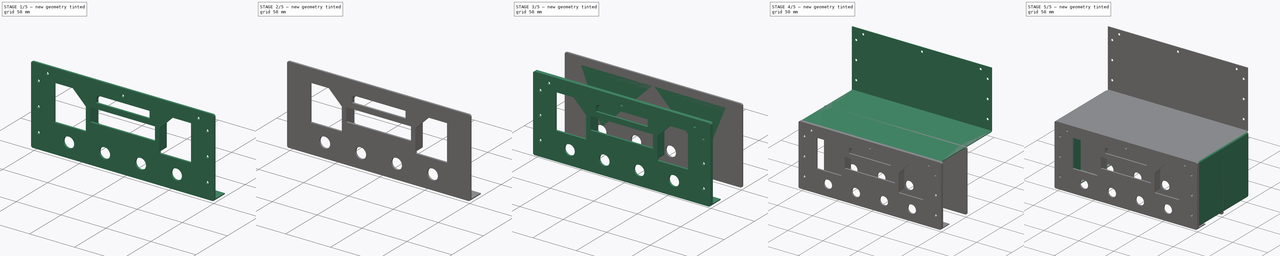
[diagram: build sequence overview — one tinted view per stage of 5, left to right]
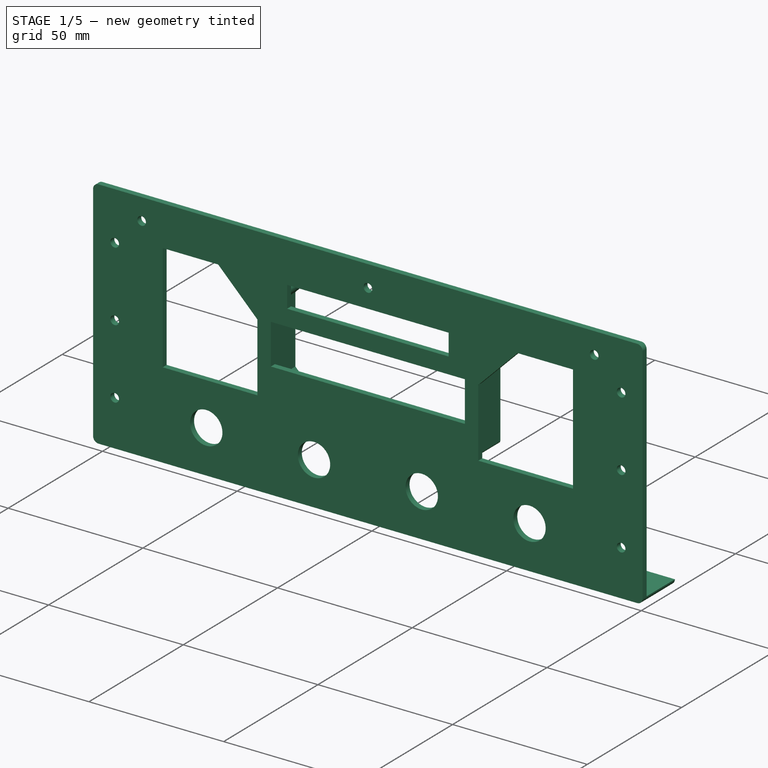
[diagram: stage 1 of 5 — iso view after this stage's code; geometry added in this stage tinted green]
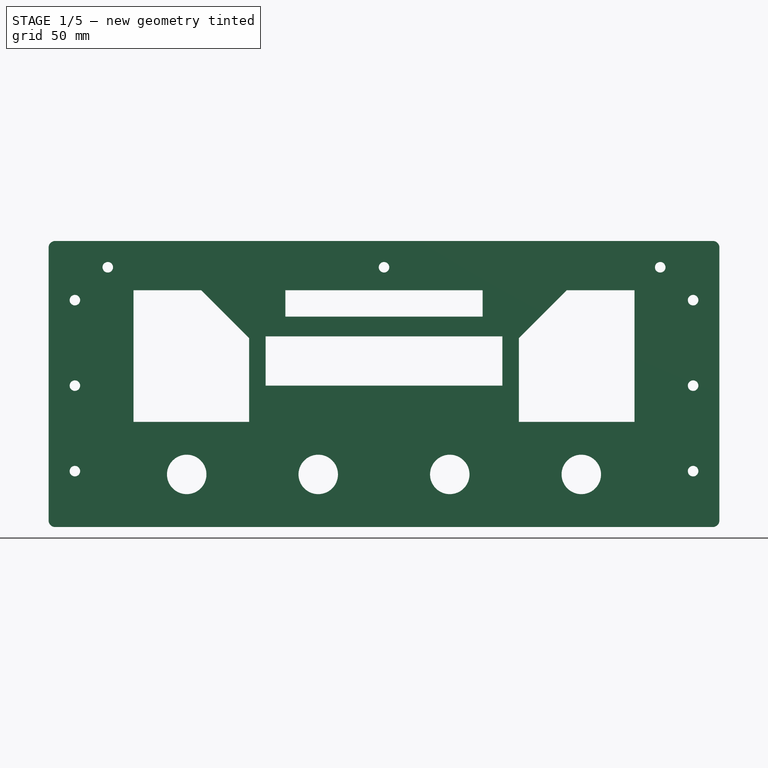
[diagram: stage 1 of 5 — front view after this stage's code; geometry added in this stage tinted green]
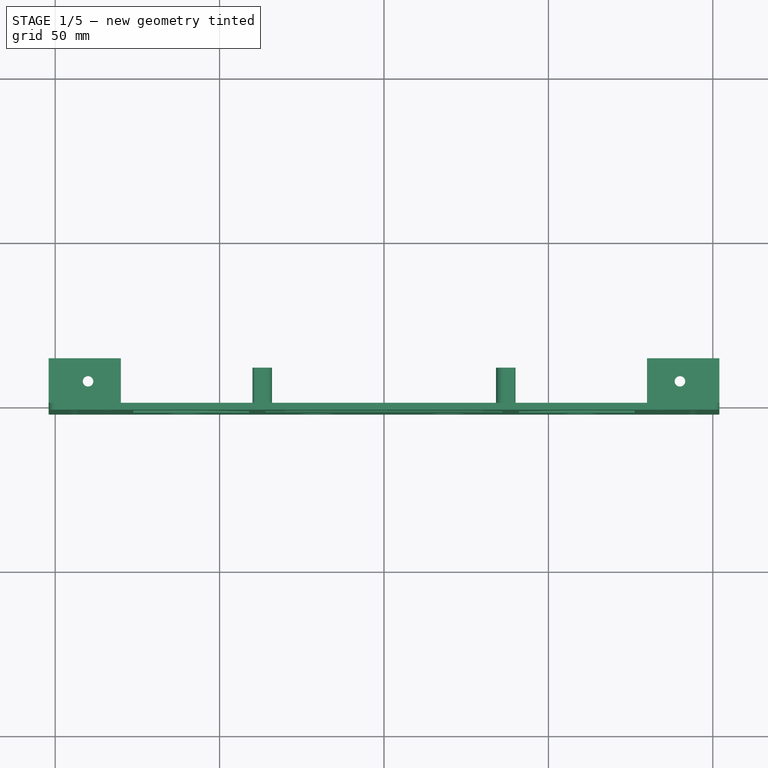
[diagram: stage 1 of 5 — top view after this stage's code; geometry added in this stage tinted green]
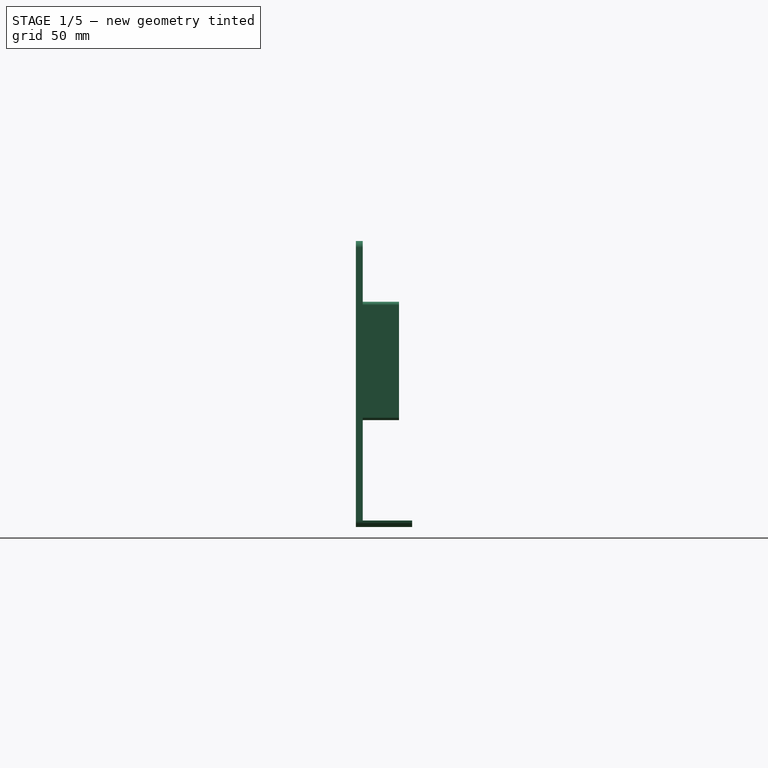
[diagram: stage 1 of 5 — right view after this stage's code; geometry added in this stage tinted green]
FCSTD DOCUMENT  (FreeCAD 0.21R33771 (Git))
Label: ADVtypeC_paramEnclosure
License: All rights reserved
LicenseURL: http://en.wikipedia.org/wiki/All_rights_reserved
objects: Sketcher::SketchObject×18, PartDesign::Pad×8, PartDesign::Pocket×8, PartDesign::Body×6, PartDesign::FeaturePython×4, PartDesign::Fillet×3, Spreadsheet::Sheet×1, PartDesign::AdditivePipe×1, Part::Fuse×1
note: 69 computed .brp shape members not serialized (recipe doc carries the construction recipe); baked Part::Feature solids carry a one-line shape summary decoded from their .brp

FEATURE [PartDesign::Body] Body001  label="MetalBottom"
  Group = -> [Sketch003,Pad001,Sketch004,Bend003,Pocket002,Sketch005,Pocket003]
  Origin = -> Origin001
  Placement = pos=(0,0,-84) rot=(0,0,1;0rad)
  Tip = -> Pocket003
  expr: .Placement.Base.z = -Spreadsheet.height - Spreadsheet.thickness * 4
FEATURE [Sketcher::SketchObject] Sketch006
  FullyConstrained = true
  MapMode = 5
  Placement = pos=(0,0,0) rot=(1,0,0;1.5708rad)
  Support = -> [XZ_Plane002]
  expr: Constraints[14] = Spreadsheet.thickness * 2
  expr: Constraints[16] = Spreadsheet.width
  expr: Constraints[17] = -Spreadsheet.thickness
  expr: Constraints[18] = Spreadsheet.height + Spreadsheet.thickness * 3
  expr: Constraints[55] = (Spreadsheet.width - 97) * 0.2
  expr: Constraints[58] = Spreadsheet.height * 0.5
  expr: Constraints[62] = Spreadsheet.buthole
  expr: Constraints[65] = Spreadsheet.width / 5
  expr: Constraints[66] = Spreadsheet.width / 5
  expr: Constraints[67] = -Spreadsheet.height + 10
  expr: Constraints[68] = -Spreadsheet.height + 10
  sketch-geometry (30):
    g0: LineSegment StartX=-100 StartY=1 StartZ=0 EndX=100 EndY=1 EndZ=0
    g1: LineSegment StartX=102 StartY=-1 StartZ=0 EndX=102 EndY=-84 EndZ=0
    g2: LineSegment StartX=-102 StartY=-1 StartZ=0 EndX=-102 EndY=-84 EndZ=0
    g3: LineSegment StartX=-100 StartY=-86 StartZ=0 EndX=100 EndY=-86 EndZ=0
    g4: ArcOfCircle CenterX=-100 CenterY=-1 CenterZ=0 NormalX=0 NormalY=0 NormalZ=1 AngleXU=0 Radius=2 StartAngle=1.5708 EndAngle=3.14159
    g5: ArcOfCircle CenterX=100 CenterY=-1 CenterZ=0 NormalX=0 NormalY=0 NormalZ=1 AngleXU=0 Radius=2 StartAngle=0 EndAngle=1.5708
    g6: ArcOfCircle CenterX=100 CenterY=-84 CenterZ=0 NormalX=0 NormalY=0 NormalZ=1 AngleXU=0 Radius=2 StartAngle=4.71239 EndAngle=6.28319
    g7: ArcOfCircle CenterX=-100 CenterY=-84 CenterZ=0 NormalX=0 NormalY=0 NormalZ=1 AngleXU=0 Radius=2 StartAngle=3.14159 EndAngle=4.71239
    g8: LineSegment StartX=-36 StartY=-28 StartZ=0 EndX=36 EndY=-28 EndZ=0
    g9: LineSegment StartX=36 StartY=-28 StartZ=0 EndX=36 EndY=-43 EndZ=0
    g10: LineSegment StartX=36 StartY=-43 StartZ=0 EndX=-36 EndY=-43 EndZ=0
    g11: LineSegment StartX=-36 StartY=-43 StartZ=0 EndX=-36 EndY=-28 EndZ=0
    g12: LineSegment StartX=-76.1664 StartY=-14 StartZ=0 EndX=-76.1664 EndY=-54 EndZ=0
    g13: LineSegment StartX=-76.1664 StartY=-14 StartZ=0 EndX=-55.5664 EndY=-14 EndZ=0
    g14: LineSegment StartX=-76.1664 StartY=-54 StartZ=0 EndX=-41 EndY=-54 EndZ=0
    g15: LineSegment StartX=-41 StartY=-54 StartZ=0 EndX=-41 EndY=-28.5664 EndZ=0
    g16: LineSegment StartX=-55.5664 StartY=-14 StartZ=0 EndX=-41 EndY=-28.5664 EndZ=0
    g17: LineSegment StartX=55.5664 StartY=-14 StartZ=0 EndX=76.1664 EndY=-14 EndZ=0
    g18: LineSegment StartX=76.1664 StartY=-14 StartZ=0 EndX=76.1664 EndY=-54 EndZ=0
    g19: LineSegment StartX=76.1664 StartY=-54 StartZ=0 EndX=41 EndY=-54 EndZ=0
    g20: LineSegment StartX=41 StartY=-54 StartZ=0 EndX=41 EndY=-28.5664 EndZ=0
    g21: LineSegment StartX=41 StartY=-28.5664 StartZ=0 EndX=55.5664 EndY=-14 EndZ=0
    g22: Circle CenterX=-20 CenterY=-70 CenterZ=0 NormalX=0 NormalY=0 NormalZ=1 AngleXU=0 Radius=6
    g23: Circle CenterX=20 CenterY=-70 CenterZ=0 NormalX=0 NormalY=0 NormalZ=1 AngleXU=0 Radius=6
    g24: Circle CenterX=60 CenterY=-70 CenterZ=0 NormalX=0 NormalY=0 NormalZ=1 AngleXU=0 Radius=6
    g25: Circle CenterX=-60 CenterY=-70 CenterZ=0 NormalX=0 NormalY=0 NormalZ=1 AngleXU=0 Radius=6
    g26: LineSegment StartX=-30 StartY=-14 StartZ=0 EndX=30 EndY=-14 EndZ=0
    g27: LineSegment StartX=30 StartY=-14 StartZ=0 EndX=30 EndY=-22 EndZ=0
    g28: LineSegment StartX=30 StartY=-22 StartZ=0 EndX=-30 EndY=-22 EndZ=0
    g29: LineSegment StartX=-30 StartY=-22 StartZ=0 EndX=-30 EndY=-14 EndZ=0
  constraints (80):
    c: Vertical(g1)
    c: Vertical(g2)
    c: Horizontal(g3)
    c: Tangent(g5,g0) = 1.5708
    c: Tangent(g5,g1) = 1.5708
    c: Tangent(g4,g2) = -1.5708
    c: Tangent(g4,g0) = 1.5708
    c: Tangent(g7,g2) = -1.5708
    c: Tangent(g7,g3) = -1.5708
    c: Tangent(g6,g3) = -1.5708
    c: Tangent(g6,g1) = 1.5708
    c: Equal(g4,g5)
    c: Equal(g5,g6)
    c: Equal(g6,g7)
    c: Radius(g4) = 2
    c: Symmetric(g0,g0,g-2)
    c: DistanceX(g0,g0) = 200
    c: DistanceY(g5) = -1
    c: DistanceY(g2,g2) = 83
    c: Coincident(g8,g9)
    c: Coincident(g9,g10)
    c: Coincident(g10,g11)
    c: Coincident(g11,g8)
    c: Horizontal(g10)
    c: Vertical(g9)
    c: Vertical(g11)
    c: DistanceX(g8,g8) = 72
    c: DistanceY(g11,g11) = 15
    c: Symmetric(g8,g8,g-2)
    c: DistanceY(g8) = -28
    c: Vertical(g12)
    c: Coincident(g13,g12)
    c: Horizontal(g13)
    c: Coincident(g14,g12)
    c: Horizontal(g14)
    c: Vertical(g15)
    c: Coincident(g16,g13)
    c: Coincident(g16,g15)
    c: Coincident(g14,g15)
    c: Angle(g16) = -0.785398
    c: Horizontal(g17)
    c: Coincident(g18,g17)
    c: Vertical(g18)
    c: Coincident(g19,g18)
    c: Horizontal(g19)
    c: Coincident(g20,g19)
    c: Coincident(g21,g20)
    c: Coincident(g21,g17)
    c: Vertical(g20)
    c: Angle(g21) = 0.785398
    c: Equal(g13,g17)
    c: Equal(g12,g18)
    c: Equal(g15,g20)
    c: DistanceY(g12) = -14
    c: Symmetric(g15,g20,g-2)
    c: DistanceX(g13,g13) = 20.6
    c: DistanceX(g15,g20) = 82
    c: Equal(g13,g16)
    c: DistanceY(g18,g18) = 40
    c: Equal(g25,g22)
    c: Equal(g22,g23)
    c: Equal(g23,g24)
    c: Diameter(g25) = 12
    c: Symmetric(g22,g23,g-2)
    c: Symmetric(g25,g24,g-2)
    c: DistanceX(g25,g22) = 40
    c: DistanceX(g22,g23) = 40
    c: DistanceY(g25) = -70
    c: DistanceY(g22) = -70
    c: Coincident(g26,g27)
    c: Coincident(g27,g28)
    c: Coincident(g28,g29)
    c: Coincident(g29,g26)
    c: Horizontal(g28)
    c: Vertical(g27)
    c: Vertical(g29)
    c: DistanceX(g26,g26) = 60
    c: Symmetric(g26,g26,g-2)
    c: DistanceY(g27,g27) = 8
    c: DistanceY(g26) = -14
FEATURE [PartDesign::Pad] Pad002
  Direction = (0,-1,-2e-16)
  Length = 2.1
  Length2 = 10
  Placement = pos=(0,0,0) rot=(1,0,0;1.5708rad)
  Profile = -> Sketch006
  ReferenceAxis = -> Sketch006 [N_Axis]
  Type = 0
FEATURE [PartDesign::Body] Body003  label="PanelBack2"
  Group = -> [Sketch007,Sketch008,AdditivePipe]
  Origin = -> Origin003
  Placement = pos=(0,-0.05,0) rot=(0,0,1;0rad)
  Tip = -> AdditivePipe
FEATURE [Sketcher::SketchObject] Sketch009
  FullyConstrained = true
  MapMode = 5
  Placement = pos=(0,0,0) rot=(1,0,0;1.5708rad)
  Support = -> [XZ_Plane002]
  expr: Constraints[1] = -Spreadsheet.height - Spreadsheet.thickness * 4
  expr: Constraints[2] = Spreadsheet.thickness * 2
  expr: Constraints[5] = Spreadsheet.width
  expr: Constraints[6] = -Spreadsheet.height - Spreadsheet.thickness * 4
  sketch-geometry (8):
    g0: ArcOfCircle CenterX=100 CenterY=-84 CenterZ=0 NormalX=0 NormalY=0 NormalZ=1 AngleXU=0 Radius=2 StartAngle=4.71239 EndAngle=6.28319
    g1: ArcOfCircle CenterX=-100 CenterY=-84 CenterZ=0 NormalX=0 NormalY=0 NormalZ=1 AngleXU=0 Radius=2 StartAngle=3.14159 EndAngle=4.71239
    g2: LineSegment StartX=-100 StartY=-86 StartZ=0 EndX=-80 EndY=-86 EndZ=0
    g3: LineSegment StartX=-102 StartY=-84 StartZ=0 EndX=-80 EndY=-84 EndZ=0
    g4: LineSegment StartX=-80 StartY=-86 StartZ=0 EndX=-80 EndY=-84 EndZ=0
    g5: LineSegment StartX=100 StartY=-86 StartZ=0 EndX=80 EndY=-86 EndZ=0
    g6: LineSegment StartX=102 StartY=-84 StartZ=0 EndX=80 EndY=-84 EndZ=0
    g7: LineSegment StartX=80 StartY=-86 StartZ=0 EndX=80 EndY=-84 EndZ=0
  constraints (23):
    c: Equal(g0,g1)
    c: DistanceY(g1) = -84
    c: Radius(g1) = 2
    c: Angle(g1) = 1.5708
    c: Angle(g0) = 1.5708
    c: DistanceX(g1,g0) = 200
    c: DistanceY(g0) = -84
    c: Coincident(g3,g1)
    c: Horizontal(g3)
    c: Coincident(g4,g2)
    c: Coincident(g4,g3)
    c: Horizontal(g5)
    c: Coincident(g6,g0)
    c: Horizontal(g6)
    c: Coincident(g7,g5)
    c: Coincident(g7,g6)
    c: Tangent(g2,g1) = -1.5708
    c: Tangent(g5,g0) = 1.5708
    c: Equal(g3,g6)
    c: Equal(g2,g5)
    c: Vertical(g4)
    c: Symmetric(g1,g0,g-2)
    c: DistanceX(g5,g5) = 20
FEATURE [PartDesign::Pad] Pad003
  BaseFeature = -> Pad002
  Direction = (0,-1,-2e-16)
  Length = 15
  Length2 = 10
  Placement = pos=(0,0,0) rot=(1,0,0;1.5708rad)
  Profile = -> Sketch009
  ReferenceAxis = -> Sketch009 [N_Axis]
  Reversed = true
  Type = 0
FEATURE [Sketcher::SketchObject] Sketch010
  FullyConstrained = true
  MapMode = 5
  Placement = pos=(0,-2.1,0) rot=(1,0,0;1.5708rad)
  Support = -> [Pad003]
  expr: Constraints[10] = Spreadsheet.width - 32
  expr: Constraints[11] = Spreadsheet.height - 28
  expr: Constraints[12] = Spreadsheet.width - 12
  expr: Constraints[13] = -17 mm
  expr: Constraints[14] = Spreadsheet.width - 12
  expr: Constraints[17] = -7
  expr: Constraints[21] = Spreadsheet.width - 12
  expr: Constraints[22] = -Spreadsheet.height / 2 - 3
  expr: Constraints[5] = Spreadsheet.hole
  expr: Constraints[9] = -Spreadsheet.thickness - 6
  sketch-geometry (9):
    g0: Circle CenterX=-84 CenterY=-7 CenterZ=0 NormalX=0 NormalY=0 NormalZ=1 AngleXU=0 Radius=1.6
    g1: Circle CenterX=84 CenterY=-7 CenterZ=0 NormalX=0 NormalY=0 NormalZ=1 AngleXU=0 Radius=1.6
    g2: Circle CenterX=94 CenterY=-17 CenterZ=0 NormalX=0 NormalY=0 NormalZ=1 AngleXU=0 Radius=1.6
    g3: Circle CenterX=94 CenterY=-69 CenterZ=0 NormalX=0 NormalY=0 NormalZ=1 AngleXU=0 Radius=1.6
    g4: Circle CenterX=-94 CenterY=-69 CenterZ=0 NormalX=0 NormalY=0 NormalZ=1 AngleXU=0 Radius=1.6
    g5: Circle CenterX=-94 CenterY=-17 CenterZ=0 NormalX=0 NormalY=0 NormalZ=1 AngleXU=0 Radius=1.6
    g6: Circle CenterX=0 CenterY=-7 CenterZ=0 NormalX=0 NormalY=0 NormalZ=1 AngleXU=0 Radius=1.6
    g7: Circle CenterX=-94 CenterY=-43 CenterZ=0 NormalX=0 NormalY=0 NormalZ=1 AngleXU=0 Radius=1.6
    g8: Circle CenterX=94 CenterY=-43 CenterZ=0 NormalX=0 NormalY=0 NormalZ=1 AngleXU=0 Radius=1.6
  constraints (23):
    c: Equal(g0,g1)
    c: Equal(g1,g2)
    c: Equal(g2,g3)
    c: Equal(g3,g4)
    c: Equal(g4,g5)
    c: Diameter(g0) = 3.2
    c: Symmetric(g0,g1,g-2)
    c: Symmetric(g5,g2,g-2)
    c: Symmetric(g4,g3,g-2)
    c: DistanceY(g0) = -7
    c: DistanceX(g0,g1) = 168
    c: DistanceY(g4,g5) = 52
    c: DistanceX(g5,g2) = 188
    c: DistanceY(g5) = -17
    c: DistanceX(g4,g3) = 188
    c: PointOnObject(g6,g-2)
    c: Equal(g5,g6)
    c: DistanceY(g6) = -7
    c: Equal(g6,g8)
    c: Equal(g8,g7)
    c: Symmetric(g7,g8,g-2)
    c: DistanceX(g7,g8) = 188
    c: DistanceY(g7) = -43
FEATURE [PartDesign::Pocket] Pocket004
  BaseFeature = -> Pad003
  Direction = (0,1,2e-16)
  Length = 5
  Length2 = 5
  Placement = pos=(0,0,0) rot=(1,0,0;1.5708rad)
  Profile = -> Sketch010
  ReferenceAxis = -> Sketch010 [N_Axis]
  Type = 0
FEATURE [Sketcher::SketchObject] Sketch012
  AttachmentOffset = pos=(0,0,0) rot=(0,0,-1;1.5708rad)
  FullyConstrained = true
  MapMode = 5
  Placement = pos=(0,0,0) rot=(0.57735,0.57735,0.57735;4.18879rad)
  expr: Constraints[60] = -20
  sketch-geometry (24):
    g0: LineSegment StartX=-52.5 StartY=40 StartZ=0 EndX=-18.5 EndY=40 EndZ=0
    g1: ArcOfCircle CenterX=-52.5 CenterY=39 CenterZ=0 NormalX=0 NormalY=0 NormalZ=1 AngleXU=0 Radius=1 StartAngle=1.5708 EndAngle=3.14159
    g2: ArcOfCircle CenterX=-18.5 CenterY=39 CenterZ=0 NormalX=0 NormalY=0 NormalZ=1 AngleXU=0 Radius=1 StartAngle=-3.6e-15 EndAngle=1.5708
    g3: LineSegment StartX=-53.5 StartY=39 StartZ=0 EndX=-53.5 EndY=36.5 EndZ=0
    g4: LineSegment StartX=-17.5 StartY=39 StartZ=0 EndX=-17.5 EndY=36.5 EndZ=0
    g5: ArcOfCircle CenterX=-51.05 CenterY=36.5 CenterZ=0 NormalX=0 NormalY=0 NormalZ=1 AngleXU=0 Radius=2.45 StartAngle=3.14159 EndAngle=5.49779
    g6: ArcOfCircle CenterX=-19.95 CenterY=36.5 CenterZ=0 NormalX=0 NormalY=0 NormalZ=1 AngleXU=0 Radius=2.45 StartAngle=3.92699 EndAngle=6.28319
    g7: LineSegment StartX=-49.3176 StartY=34.7676 StartZ=0 EndX=-48 EndY=36.0852 EndZ=0
    g8: LineSegment StartX=-21.6824 StartY=34.7676 StartZ=0 EndX=-23 EndY=36.0852 EndZ=0
    g9: LineSegment StartX=-48 StartY=36.0852 StartZ=0 EndX=-23 EndY=36.0852 EndZ=0
    g10: LineSegment StartX=-52.5 StartY=-40 StartZ=0 EndX=-18.5 EndY=-40 EndZ=0
    g11: ArcOfCircle CenterX=-52.5 CenterY=-39 CenterZ=0 NormalX=0 NormalY=0 NormalZ=1 AngleXU=0 Radius=1 StartAngle=3.14159 EndAngle=4.71239
    g12: ArcOfCircle CenterX=-18.5 CenterY=-39 CenterZ=0 NormalX=0 NormalY=0 NormalZ=1 AngleXU=0 Radius=1 StartAngle=4.71239 EndAngle=6.28319
    g13: LineSegment StartX=-53.5 StartY=-39 StartZ=0 EndX=-53.5 EndY=-36.5 EndZ=0
    g14: LineSegment StartX=-17.5 StartY=-39 StartZ=0 EndX=-17.5 EndY=-36.5 EndZ=0
    g15: ArcOfCircle CenterX=-51.05 CenterY=-36.5 CenterZ=0 NormalX=0 NormalY=0 NormalZ=1 AngleXU=0 Radius=2.45 StartAngle=0.785398 EndAngle=3.14159
    g16: LineSegment StartX=-49.3176 StartY=-34.7676 StartZ=0 EndX=-48 EndY=-36.0852 EndZ=0
    g17: LineSegment StartX=-48 StartY=-36.0852 StartZ=0 EndX=-23 EndY=-36.0852 EndZ=0
    g18: Circle CenterX=-51 CenterY=-37.5 CenterZ=0 NormalX=0 NormalY=0 NormalZ=1 AngleXU=0 Radius=1.05
    g19: Circle CenterX=-20 CenterY=-37.5 CenterZ=0 NormalX=0 NormalY=0 NormalZ=1 AngleXU=0 Radius=1.05
    g20: Circle CenterX=-20 CenterY=37.5 CenterZ=0 NormalX=0 NormalY=0 NormalZ=1 AngleXU=0 Radius=1.05
    g21: Circle CenterX=-51 CenterY=37.5 CenterZ=0 NormalX=0 NormalY=0 NormalZ=1 AngleXU=0 Radius=1.05
    g22: LineSegment StartX=-23 StartY=-36.0852 StartZ=0 EndX=-21.6824 EndY=-34.7676 EndZ=0
    g23: ArcOfCircle CenterX=-19.95 CenterY=-36.5 CenterZ=0 NormalX=0 NormalY=0 NormalZ=1 AngleXU=0 Radius=2.45 StartAngle=6e-16 EndAngle=2.35619
  constraints (61):
    c: Horizontal(g0)
    c: Vertical(g3)
    c: Vertical(g4)
    c: Tangent(g5,g3) = -1.5708
    c: Tangent(g3,g1) = -1.5708
    c: Tangent(g1,g0) = 1.5708
    c: Tangent(g2,g0) = 1.5708
    c: Tangent(g4,g2) = 1.5708
    c: Tangent(g6,g4) = 1.5708
    c: Horizontal(g9)
    c: Tangent(g8,g6) = 1.5708
    c: Tangent(g7,g5) = -1.5708
    c: Equal(g1,g2)
    c: Equal(g7,g8)
    c: Equal(g6,g5)
    c: Angle(g7) = 0.785398
    c: Coincident(g9,g7)
    c: Coincident(g8,g9)
    c: Radius(g1) = 1
    c: DistanceX(g0,g0) = 34
    c: DistanceY(g3,g3) = 2.5
    c: DistanceX(g9,g9) = 25
    c: Radius(g5) = 2.45
    c: Horizontal(g10)
    c: Vertical(g13)
    c: Vertical(g14)
    c: Coincident(g17,g16)
    c: Horizontal(g17)
    c: Tangent(g12,g10) = -1.5708
    c: Tangent(g14,g12) = -1.5708
    c: Tangent(g11,g10) = -1.5708
    c: Tangent(g13,g11) = 1.5708
    c: Tangent(g15,g13) = 1.5708
    c: Tangent(g16,g15) = 1.5708
    c: Equal(g7,g16)
    c: Equal(g10,g0)
    c: Equal(g3,g13)
    c: Equal(g4,g14)
    c: Equal(g1,g11)
    c: Equal(g2,g12)
    c: Angle(g16) = -0.785398
    c: DistanceY(g10,g0) = 80
    c: Symmetric(g3,g13,g-1)
    c: Diameter(g18) = 2.1
    c: Symmetric(g21,g18,g-1)
    c: Symmetric(g20,g19,g-1)
    c: Equal(g18,g19)
    c: Equal(g19,g20)
    c: Equal(g20,g21)
    c: DistanceX(g21,g20) = 31
    c: DistanceY(g19,g20) = 75
    c: DistanceY(g18,g21) = 75
    c: Equal(g13,g14)
    c: DistanceX(g20,g6) = 0.05
    c: Coincident(g22,g17)
    c: Tangent(g23,g22) = 1.5708
    c: Tangent(g23,g14) = -1.5708
    c: Equal(g15,g23)
    c: Equal(g22,g16)
    c: Equal(g6,g23)
    c: DistanceX(g20) = -20
FEATURE [PartDesign::Pad] Pad004
  BaseFeature = -> Pocket004
  Direction = (-1e-16,1,-1e-15)
  Length = 11
  Length2 = 10
  Placement = pos=(0,0,0) rot=(1,0,0;1.5708rad)
  Profile = -> Sketch012
  ReferenceAxis = -> Sketch012 [N_Axis]
  Type = 0
FEATURE [PartDesign::Body] Body005  label="PanelTransparent"
  Group = -> [Sketch016,Pad007,Sketch017,Pocket006]
  Origin = -> Origin005
  Placement = pos=(0,-54.1,0) rot=(0,0,1;0rad)
  Tip = -> Pocket006
  expr: .Placement.Base.y = -Spreadsheet.length / 2 - Spreadsheet.thickness * 2 - 2.1
FEATURE [Sketcher::SketchObject] Sketch018
  FullyConstrained = true
  MapMode = 5
  Placement = pos=(-6.11e-14,-1.91e-14,-86) rot=(1,0,0;3.14159rad)
  Support = -> [Pad004]
  expr: Constraints[1] = Spreadsheet.hole
  expr: Constraints[3] = Spreadsheet.width - 20
  expr: Constraints[4] = -8 mm
  sketch-geometry (2):
    g0: Circle CenterX=-90 CenterY=-8 CenterZ=0 NormalX=0 NormalY=0 NormalZ=1 AngleXU=0 Radius=1.6
    g1: Circle CenterX=90 CenterY=-8 CenterZ=0 NormalX=0 NormalY=0 NormalZ=1 AngleXU=0 Radius=1.6
  constraints (5):
    c: Equal(g0,g1)
    c: Diameter(g0) = 3.2
    c: Symmetric(g0,g1,g-2)
    c: DistanceX(g0,g1) = 180
    c: DistanceY(g0) = -8
FEATURE [PartDesign::Pocket] Pocket007
  BaseFeature = -> Pad004
  Direction = (7e-16,-2e-16,1)
  Length = 5
  Length2 = 5
  Placement = pos=(0,0,0) rot=(1,0,0;1.5708rad)
  Profile = -> Sketch018
  ReferenceAxis = -> Sketch018 [N_Axis]
  Type = 0
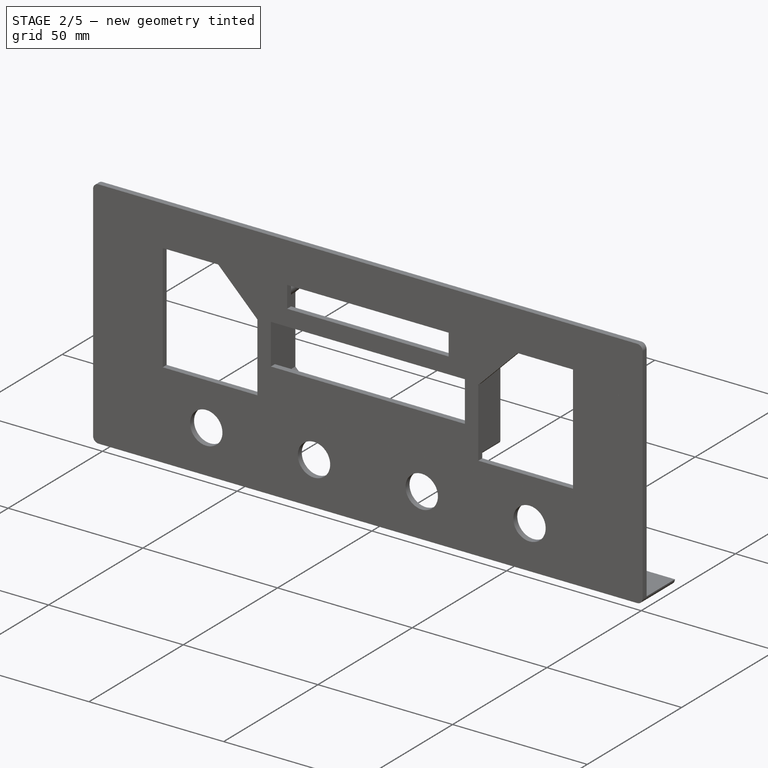
[diagram: stage 2 of 5 — iso view after this stage's code; geometry added in this stage tinted green]
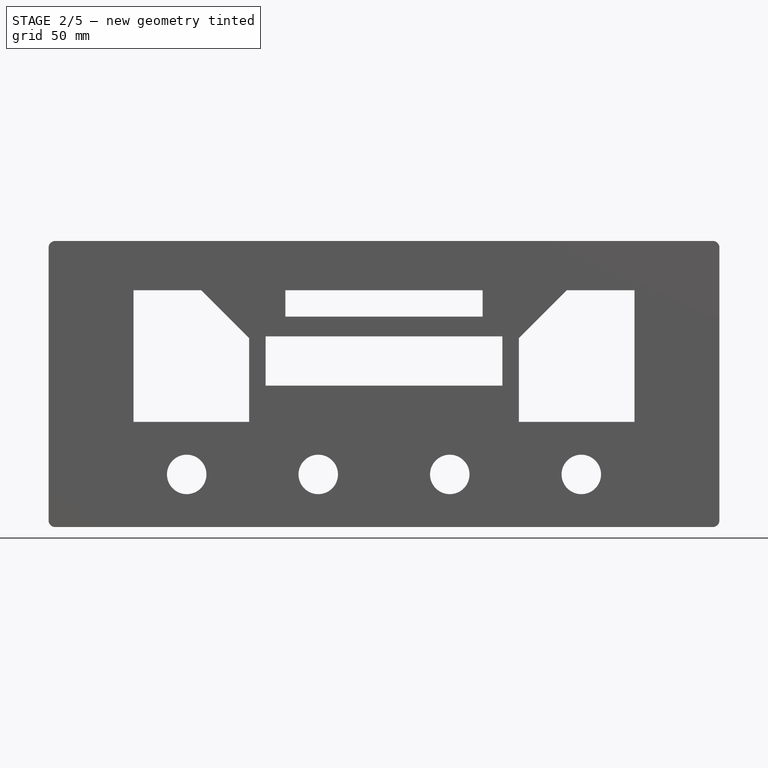
[diagram: stage 2 of 5 — front view after this stage's code; geometry added in this stage tinted green]
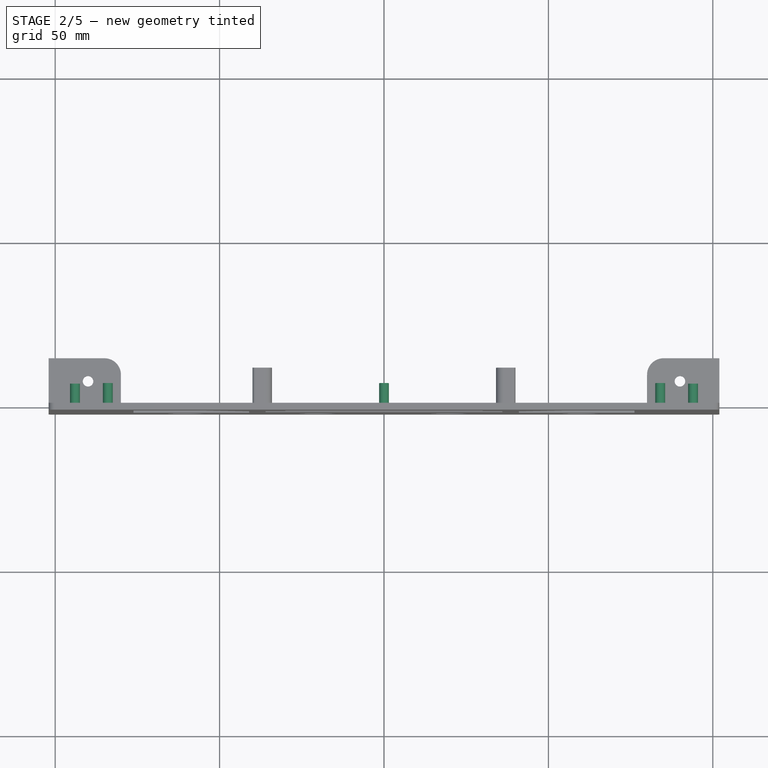
[diagram: stage 2 of 5 — top view after this stage's code; geometry added in this stage tinted green]
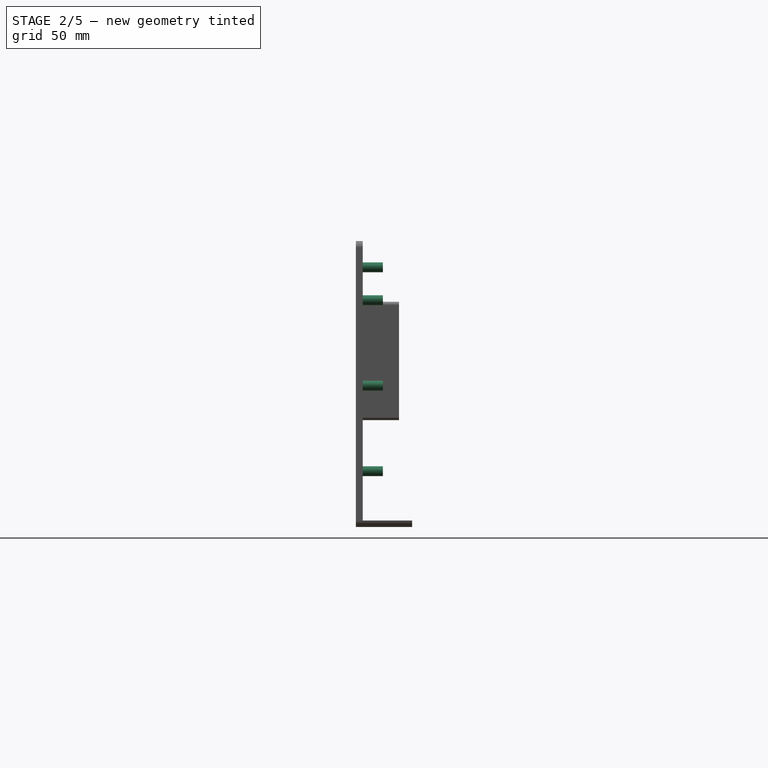
[diagram: stage 2 of 5 — right view after this stage's code; geometry added in this stage tinted green]
FEATURE [Sketcher::SketchObject] Sketch013
  FullyConstrained = true
  MapMode = 5
  Placement = pos=(0,0,0) rot=(1,0,0;1.5708rad)
  Support = -> [XZ_Plane005]
  expr: Constraints[14] = Spreadsheet.thickness * 2
  expr: Constraints[16] = Spreadsheet.width
  expr: Constraints[17] = -Spreadsheet.thickness
  expr: Constraints[18] = Spreadsheet.height + Spreadsheet.thickness * 3
  expr: Constraints[26] = Spreadsheet.width - 30
  expr: Constraints[32] = Spreadsheet.buthole
  expr: Constraints[35] = Spreadsheet.width / 5
  expr: Constraints[36] = Spreadsheet.width / 5
  expr: Constraints[37] = -Spreadsheet.height + 10
  expr: Constraints[38] = -Spreadsheet.height + 10
  expr: Constraints[39] = Spreadsheet.height - Spreadsheet.buthole / 2 - 30
  sketch-geometry (16):
    g0: LineSegment StartX=-100 StartY=1 StartZ=0 EndX=100 EndY=1 EndZ=0
    g1: LineSegment StartX=102 StartY=-1 StartZ=0 EndX=102 EndY=-84 EndZ=0
    g2: LineSegment StartX=-102 StartY=-1 StartZ=0 EndX=-102 EndY=-84 EndZ=0
    g3: LineSegment StartX=-100 StartY=-86 StartZ=0 EndX=100 EndY=-86 EndZ=0
    g4: ArcOfCircle CenterX=-100 CenterY=-1 CenterZ=0 NormalX=0 NormalY=0 NormalZ=1 AngleXU=0 Radius=2 StartAngle=1.5708 EndAngle=3.14159
    g5: ArcOfCircle CenterX=100 CenterY=-1 CenterZ=0 NormalX=0 NormalY=0 NormalZ=1 AngleXU=0 Radius=2 StartAngle=0 EndAngle=1.5708
    g6: ArcOfCircle CenterX=100 CenterY=-84 CenterZ=0 NormalX=0 NormalY=0 NormalZ=1 AngleXU=0 Radius=2 StartAngle=4.71239 EndAngle=6.28319
    g7: ArcOfCircle CenterX=-100 CenterY=-84 CenterZ=0 NormalX=0 NormalY=0 NormalZ=1 AngleXU=0 Radius=2 StartAngle=3.14159 EndAngle=4.71239
    g8: LineSegment StartX=-85 StartY=-14 StartZ=0 EndX=85 EndY=-14 EndZ=0
    g9: LineSegment StartX=85 StartY=-14 StartZ=0 EndX=85 EndY=-58 EndZ=0
    g10: LineSegment StartX=85 StartY=-58 StartZ=0 EndX=-85 EndY=-58 EndZ=0
    g11: LineSegment StartX=-85 StartY=-58 StartZ=0 EndX=-85 EndY=-14 EndZ=0
    g12: Circle CenterX=-20 CenterY=-70 CenterZ=0 NormalX=0 NormalY=0 NormalZ=1 AngleXU=0 Radius=6
    g13: Circle CenterX=20 CenterY=-70 CenterZ=0 NormalX=0 NormalY=0 NormalZ=1 AngleXU=0 Radius=6
    g14: Circle CenterX=60 CenterY=-70 CenterZ=0 NormalX=0 NormalY=0 NormalZ=1 AngleXU=0 Radius=6
    g15: Circle CenterX=-60 CenterY=-70 CenterZ=0 NormalX=0 NormalY=0 NormalZ=1 AngleXU=0 Radius=6
  constraints (40):
    c: Vertical(g1)
    c: Vertical(g2)
    c: Horizontal(g3)
    c: Tangent(g5,g0) = 1.5708
    c: Tangent(g5,g1) = 1.5708
    c: Tangent(g4,g2) = -1.5708
    c: Tangent(g4,g0) = 1.5708
    c: Tangent(g7,g2) = -1.5708
    c: Tangent(g7,g3) = -1.5708
    c: Tangent(g6,g3) = -1.5708
    c: Tangent(g6,g1) = 1.5708
    c: Equal(g4,g5)
    c: Equal(g5,g6)
    c: Equal(g6,g7)
    c: Radius(g4) = 2
    c: Symmetric(g0,g0,g-2)
    c: DistanceX(g0,g0) = 200
    c: DistanceY(g5) = -1
    c: DistanceY(g2,g2) = 83
    c: Coincident(g8,g9)
    c: Coincident(g9,g10)
    c: Coincident(g10,g11)
    c: Coincident(g11,g8)
    c: Horizontal(g10)
    c: Vertical(g9)
    c: Vertical(g11)
    c: DistanceX(g8,g8) = 170
    c: Symmetric(g8,g8,g-2)
    c: DistanceY(g8) = -14
    c: Equal(g15,g12)
    c: Equal(g12,g13)
    c: Equal(g13,g14)
    c: Diameter(g15) = 12
    c: Symmetric(g12,g13,g-2)
    c: Symmetric(g15,g14,g-2)
    c: DistanceX(g15,g12) = 40
    c: DistanceX(g12,g13) = 40
    c: DistanceY(g15) = -70
    c: DistanceY(g12) = -70
    c: DistanceY(g11,g11) = 44
FEATURE [PartDesign::Pad] Pad005
  Direction = (0,-1,-2e-16)
  Length = 2.1
  Length2 = 10
  Placement = pos=(0,0,0) rot=(1,0,0;1.5708rad)
  Profile = -> Sketch013
  ReferenceAxis = -> Sketch013 [N_Axis]
  Type = 0
FEATURE [Sketcher::SketchObject] Sketch014
  FullyConstrained = true
  MapMode = 5
  Placement = pos=(0,0,0) rot=(1,0,0;1.5708rad)
  expr: Constraints[10] = Spreadsheet.width - 32
  expr: Constraints[11] = Spreadsheet.height - 28
  expr: Constraints[12] = Spreadsheet.width - 12
  expr: Constraints[13] = -17 mm
  expr: Constraints[14] = Spreadsheet.width - 12
  expr: Constraints[17] = -7
  expr: Constraints[21] = Spreadsheet.width - 12
  expr: Constraints[22] = -Spreadsheet.height / 2 - 3
  expr: Constraints[5] = Spreadsheet.hole - 0.2
  expr: Constraints[9] = -Spreadsheet.thickness - 6
  sketch-geometry (9):
    g0: Circle CenterX=-84 CenterY=-7 CenterZ=0 NormalX=0 NormalY=0 NormalZ=1 AngleXU=0 Radius=1.5
    g1: Circle CenterX=84 CenterY=-7 CenterZ=0 NormalX=0 NormalY=0 NormalZ=1 AngleXU=0 Radius=1.5
    g2: Circle CenterX=94 CenterY=-17 CenterZ=0 NormalX=0 NormalY=0 NormalZ=1 AngleXU=0 Radius=1.5
    g3: Circle CenterX=94 CenterY=-69 CenterZ=0 NormalX=0 NormalY=0 NormalZ=1 AngleXU=0 Radius=1.5
    g4: Circle CenterX=-94 CenterY=-69 CenterZ=0 NormalX=0 NormalY=0 NormalZ=1 AngleXU=0 Radius=1.5
    g5: Circle CenterX=-94 CenterY=-17 CenterZ=0 NormalX=0 NormalY=0 NormalZ=1 AngleXU=0 Radius=1.5
    g6: Circle CenterX=0 CenterY=-7 CenterZ=0 NormalX=0 NormalY=0 NormalZ=1 AngleXU=0 Radius=1.5
    g7: Circle CenterX=-94 CenterY=-43 CenterZ=0 NormalX=0 NormalY=0 NormalZ=1 AngleXU=0 Radius=1.5
    g8: Circle CenterX=94 CenterY=-43 CenterZ=0 NormalX=0 NormalY=0 NormalZ=1 AngleXU=0 Radius=1.5
  constraints (23):
    c: Equal(g0,g1)
    c: Equal(g1,g2)
    c: Equal(g2,g3)
    c: Equal(g3,g4)
    c: Equal(g4,g5)
    c: Diameter(g0) = 3
    c: Symmetric(g0,g1,g-2)
    c: Symmetric(g5,g2,g-2)
    c: Symmetric(g4,g3,g-2)
    c: DistanceY(g0) = -7
    c: DistanceX(g0,g1) = 168
    c: DistanceY(g4,g5) = 52
    c: DistanceX(g5,g2) = 188
    c: DistanceY(g5) = -17
    c: DistanceX(g4,g3) = 188
    c: PointOnObject(g6,g-2)
    c: Equal(g5,g6)
    c: DistanceY(g6) = -7
    c: Equal(g6,g8)
    c: Equal(g8,g7)
    c: Symmetric(g7,g8,g-2)
    c: DistanceX(g7,g8) = 188
    c: DistanceY(g7) = -43
FEATURE [PartDesign::Pad] Pad006
  BaseFeature = -> Pad005
  Direction = (0,-1,2e-16)
  Length = 6.1
  Length2 = 10
  Placement = pos=(0,0,0) rot=(1,0,0;1.5708rad)
  Profile = -> Sketch014
  ReferenceAxis = -> Sketch014 [N_Axis]
  Reversed = true
  Type = 0
FEATURE [Sketcher::SketchObject] Sketch015
  FullyConstrained = true
  MapMode = 5
  Placement = pos=(0,-2.1,0) rot=(1,0,0;1.5708rad)
  Support = -> [Pad006]
  expr: Constraints[5] = Spreadsheet.buthole + 4
  expr: Constraints[6] = -Spreadsheet.height + 10
  expr: Constraints[7] = Spreadsheet.width / 5
  expr: Constraints[8] = Spreadsheet.width / 5
  expr: Constraints[9] = -Spreadsheet.height + 10
  sketch-geometry (4):
    g0: Circle CenterX=-60 CenterY=-70 CenterZ=0 NormalX=0 NormalY=0 NormalZ=1 AngleXU=0 Radius=8
    g1: Circle CenterX=-20 CenterY=-70 CenterZ=0 NormalX=0 NormalY=0 NormalZ=1 AngleXU=0 Radius=8
    g2: Circle CenterX=20 CenterY=-70 CenterZ=0 NormalX=0 NormalY=0 NormalZ=1 AngleXU=0 Radius=8
    g3: Circle CenterX=60 CenterY=-70 CenterZ=0 NormalX=0 NormalY=0 NormalZ=1 AngleXU=0 Radius=8
  constraints (10):
    c: Equal(g0,g1)
    c: Equal(g1,g2)
    c: Equal(g2,g3)
    c: Symmetric(g1,g2,g-2)
    c: Symmetric(g0,g3,g-2)
    c: Diameter(g0) = 16
    c: DistanceY(g0) = -70
    c: DistanceX(g0,g1) = 40
    c: DistanceX(g1,g2) = 40
    c: DistanceY(g1) = -70
FEATURE [PartDesign::Pocket] Pocket005
  BaseFeature = -> Pad006
  Direction = (0,1,2e-16)
  Length = 1.2
  Length2 = 5
  Placement = pos=(0,0,0) rot=(1,0,0;1.5708rad)
  Profile = -> Sketch015
  ReferenceAxis = -> Sketch015 [N_Axis]
  Type = 0
FEATURE [PartDesign::Fillet] Fillet
  Base = -> Pocket005 [Edge38,Edge39,Edge40,Edge41]
  BaseFeature = -> Pocket005
  Placement = pos=(0,0,0) rot=(1,0,0;1.5708rad)
  Radius = 1.1
  SupportTransform = false
  UseAllEdges = false
FEATURE [PartDesign::Body] Body004  label="PanelFrame"
  Group = -> [Sketch013,Pad005,Sketch014,Pad006,Sketch015,Pocket005,Fillet,Fillet001]
  Origin = -> Origin004
  Placement = pos=(0,-56.2,0) rot=(0,0,1;0rad)
  Tip = -> Fillet001
  expr: .Placement.Base.y = -Spreadsheet.length / 2 - Spreadsheet.thickness * 2 - 4.2
FEATURE [PartDesign::Fillet] Fillet002
  Base = -> Pocket007 [Edge123,Edge114]
  BaseFeature = -> Pocket007
  Placement = pos=(0,0,0) rot=(1,0,0;1.5708rad)
  Radius = 5
  SupportTransform = false
  UseAllEdges = false
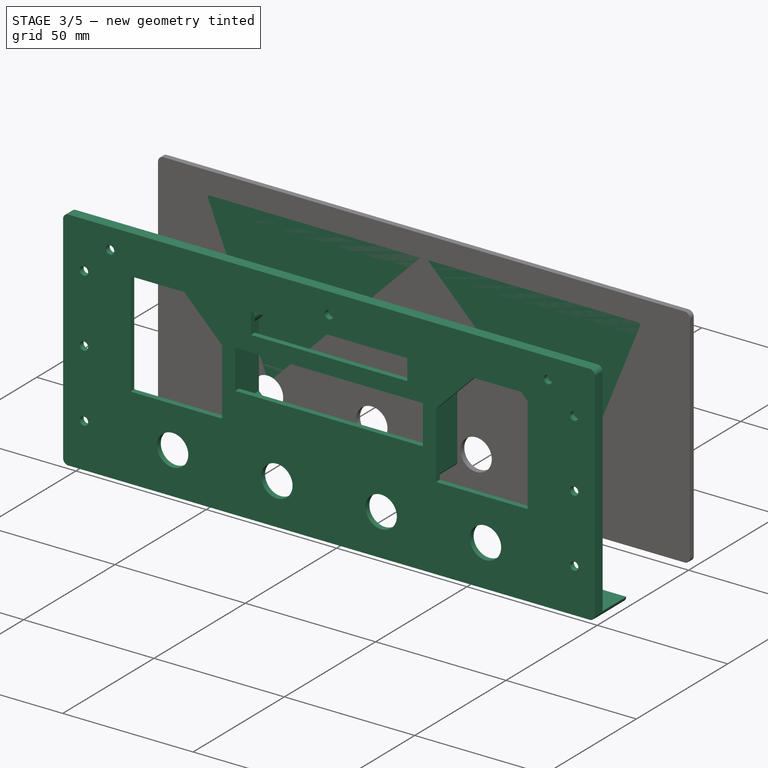
[diagram: stage 3 of 5 — iso view after this stage's code; geometry added in this stage tinted green]
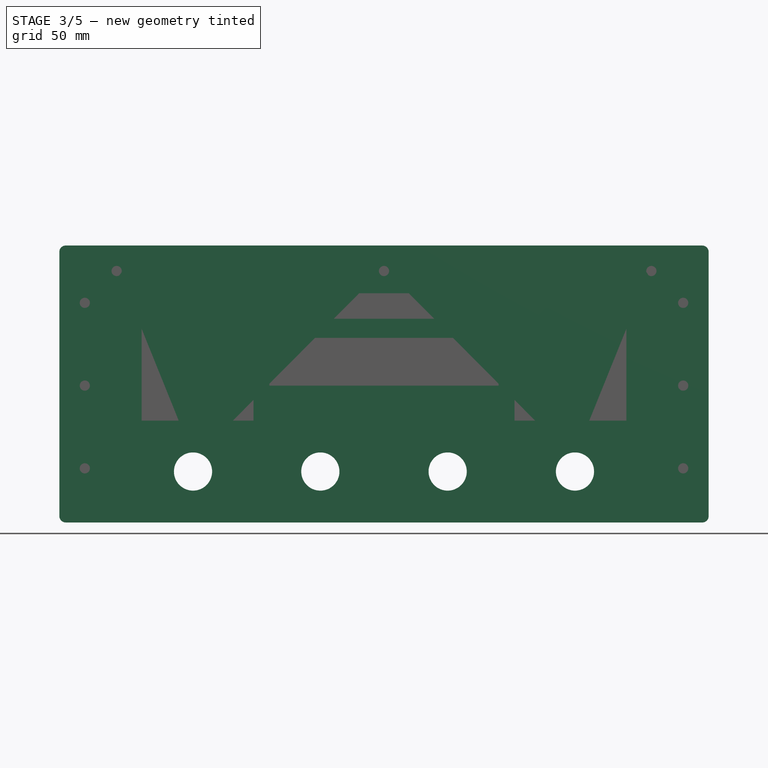
[diagram: stage 3 of 5 — front view after this stage's code; geometry added in this stage tinted green]
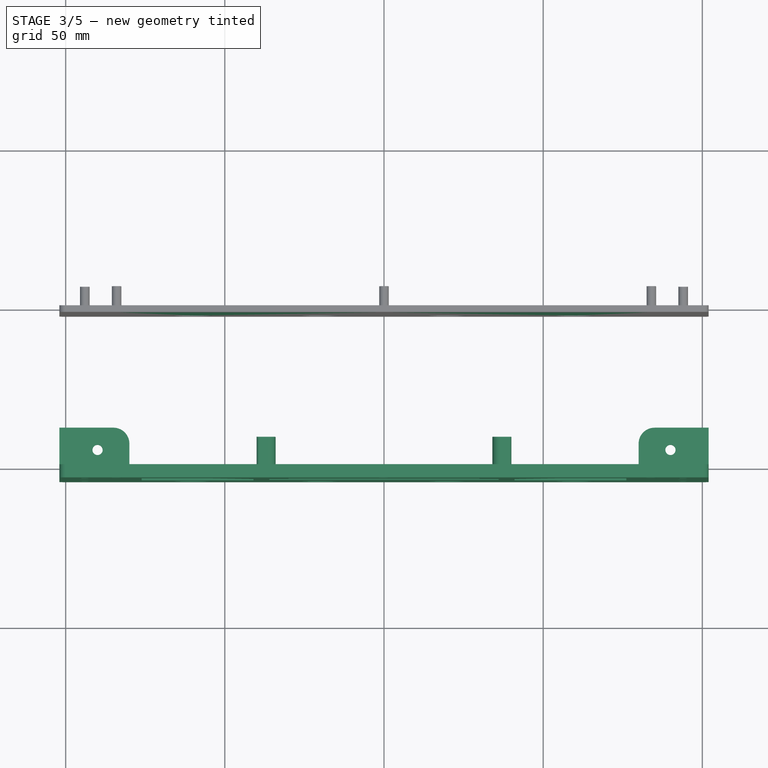
[diagram: stage 3 of 5 — top view after this stage's code; geometry added in this stage tinted green]
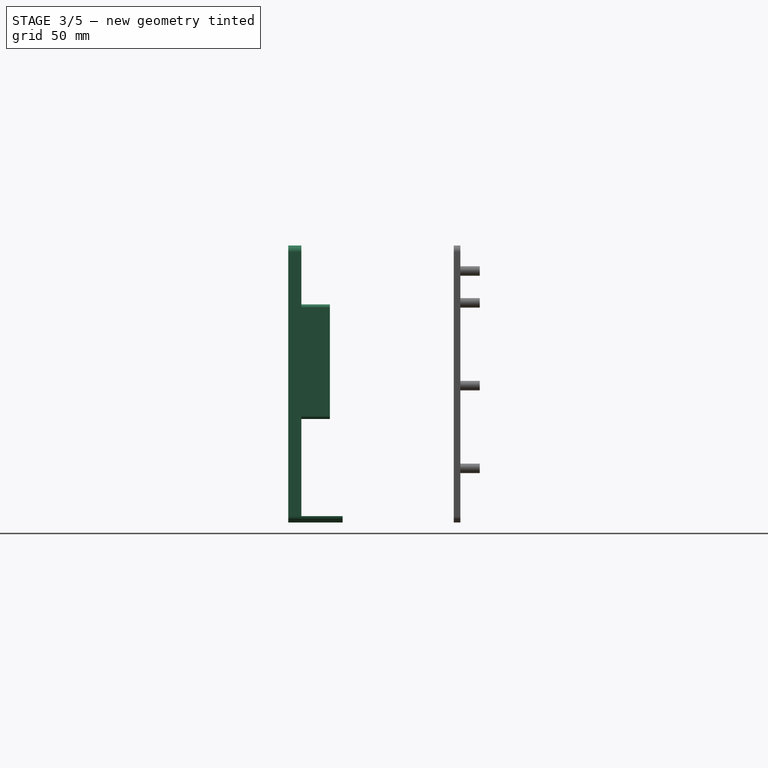
[diagram: stage 3 of 5 — right view after this stage's code; geometry added in this stage tinted green]
FEATURE [Sketcher::SketchObject] Sketch007
  FullyConstrained = true
  MapMode = 5
  Placement = pos=(0,0,0) rot=(1,0,0;1.5708rad)
  Support = -> [XZ_Plane004]
  expr: Constraints[10] = -Spreadsheet.thickness
  expr: Constraints[11] = Spreadsheet.height + Spreadsheet.thickness * 3
  expr: Constraints[12] = Spreadsheet.height + Spreadsheet.thickness * 3
  expr: Constraints[7] = Spreadsheet.thickness * 2
  expr: Constraints[9] = Spreadsheet.width
  sketch-geometry (5):
    g0: LineSegment StartX=-100 StartY=1 StartZ=0 EndX=100 EndY=1 EndZ=0
    g1: LineSegment StartX=102 StartY=-1 StartZ=0 EndX=102 EndY=-84 EndZ=0
    g2: LineSegment StartX=-102 StartY=-1 StartZ=0 EndX=-102 EndY=-84 EndZ=0
    g3: ArcOfCircle CenterX=-100 CenterY=-1 CenterZ=0 NormalX=0 NormalY=0 NormalZ=1 AngleXU=0 Radius=2 StartAngle=1.5708 EndAngle=3.14159
    g4: ArcOfCircle CenterX=100 CenterY=-1 CenterZ=0 NormalX=0 NormalY=0 NormalZ=1 AngleXU=0 Radius=2 StartAngle=1e-16 EndAngle=1.5708
  constraints (13):
    c: Vertical(g1)
    c: Vertical(g2)
    c: Tangent(g4,g0) = 1.5708
    c: Tangent(g4,g1) = 1.5708
    c: Tangent(g3,g2) = -1.5708
    c: Tangent(g3,g0) = 1.5708
    c: Equal(g3,g4)
    c: Radius(g3) = 2
    c: Symmetric(g0,g0,g-2)
    c: DistanceX(g0,g0) = 200
    c: DistanceY(g4) = -1
    c: DistanceY(g2,g2) = 83
    c: DistanceY(g1,g1) = 83
FEATURE [Sketcher::SketchObject] Sketch008
  FullyConstrained = true
  MapMode = 5
  Placement = pos=(0,0,0) rot=(0.57735,0.57735,0.57735;2.0944rad)
  Support = -> [YZ_Plane003]
  expr: Constraints[6] = Spreadsheet.thickness
  expr: Constraints[7] = Spreadsheet.thickness * 2.1
  sketch-geometry (3):
    g0: LineSegment StartX=0 StartY=1 StartZ=0 EndX=2.1 EndY=1 EndZ=0
    g1: ArcOfCircle CenterX=2.1 CenterY=-1.1 CenterZ=0 NormalX=0 NormalY=0 NormalZ=1 AngleXU=0 Radius=2.1 StartAngle=1.5708 EndAngle=3.14159
    g2: LineSegment StartX=0 StartY=1 StartZ=0 EndX=0 EndY=-1.1 EndZ=0
  constraints (8):
    c: Coincident(g0,g2)
    c: Horizontal(g0)
    c: Vertical(g2)
    c: Tangent(g2,g1) = -1.5708
    c: Tangent(g1,g0) = 1.5708
    c: PointOnObject(g0,g-2)
    c: DistanceY(g0) = 1
    c: Radius(g1) = 2.1
FEATURE [PartDesign::AdditivePipe] AdditivePipe
  AuxilleryCurvelinear = true
  AuxillerySpineTangent = false
  Binormal = (0,0,0)
  Mode = 0
  Placement = pos=(0,0,0) rot=(0.57735,0.57735,0.57735;2.0944rad)
  Profile = -> Sketch008
  Spine = -> Sketch007 [Edge3,Edge2,Edge1,Edge4,Edge5]
  SpineTangent = false
  Transformation = 0
  Transition = 0
FEATURE [Sketcher::SketchObject] Sketch016
  FullyConstrained = true
  MapMode = 5
  Placement = pos=(0,0,0) rot=(1,0,0;1.5708rad)
  Support = -> [XZ_Plane006]
  expr: Constraints[14] = Spreadsheet.thickness * 2
  expr: Constraints[16] = Spreadsheet.width
  expr: Constraints[17] = -Spreadsheet.thickness
  expr: Constraints[18] = Spreadsheet.height + Spreadsheet.thickness * 3
  expr: Constraints[22] = Spreadsheet.buthole
  expr: Constraints[25] = Spreadsheet.width / 5
  expr: Constraints[26] = Spreadsheet.width / 5
  expr: Constraints[27] = -Spreadsheet.height + 10
  expr: Constraints[28] = -Spreadsheet.height + 10
  sketch-geometry (12):
    g0: LineSegment StartX=-100 StartY=1 StartZ=0 EndX=100 EndY=1 EndZ=0
    g1: LineSegment StartX=102 StartY=-1 StartZ=0 EndX=102 EndY=-84 EndZ=0
    g2: LineSegment StartX=-102 StartY=-1 StartZ=0 EndX=-102 EndY=-84 EndZ=0
    g3: LineSegment StartX=-100 StartY=-86 StartZ=0 EndX=100 EndY=-86 EndZ=0
    g4: ArcOfCircle CenterX=-100 CenterY=-1 CenterZ=0 NormalX=0 NormalY=0 NormalZ=1 AngleXU=0 Radius=2 StartAngle=1.5708 EndAngle=3.14159
    g5: ArcOfCircle CenterX=100 CenterY=-1 CenterZ=0 NormalX=0 NormalY=0 NormalZ=1 AngleXU=0 Radius=2 StartAngle=0 EndAngle=1.5708
    g6: ArcOfCircle CenterX=100 CenterY=-84 CenterZ=0 NormalX=0 NormalY=0 NormalZ=1 AngleXU=0 Radius=2 StartAngle=4.71239 EndAngle=6.28319
    g7: ArcOfCircle CenterX=-100 CenterY=-84 CenterZ=0 NormalX=0 NormalY=0 NormalZ=1 AngleXU=0 Radius=2 StartAngle=3.14159 EndAngle=4.71239
    g8: Circle CenterX=-20 CenterY=-70 CenterZ=0 NormalX=0 NormalY=0 NormalZ=1 AngleXU=0 Radius=6
    g9: Circle CenterX=20 CenterY=-70 CenterZ=0 NormalX=0 NormalY=0 NormalZ=1 AngleXU=0 Radius=6
    g10: Circle CenterX=60 CenterY=-70 CenterZ=0 NormalX=0 NormalY=0 NormalZ=1 AngleXU=0 Radius=6
    g11: Circle CenterX=-60 CenterY=-70 CenterZ=0 NormalX=0 NormalY=0 NormalZ=1 AngleXU=0 Radius=6
  constraints (29):
    c: Vertical(g1)
    c: Vertical(g2)
    c: Horizontal(g3)
    c: Tangent(g5,g0) = 1.5708
    c: Tangent(g5,g1) = 1.5708
    c: Tangent(g4,g2) = -1.5708
    c: Tangent(g4,g0) = 1.5708
    c: Tangent(g7,g2) = -1.5708
    c: Tangent(g7,g3) = -1.5708
    c: Tangent(g6,g3) = -1.5708
    c: Tangent(g6,g1) = 1.5708
    c: Equal(g4,g5)
    c: Equal(g5,g6)
    c: Equal(g6,g7)
    c: Radius(g4) = 2
    c: Symmetric(g0,g0,g-2)
    c: DistanceX(g0,g0) = 200
    c: DistanceY(g5) = -1
    c: DistanceY(g2,g2) = 83
    c: Equal(g11,g8)
    c: Equal(g8,g9)
    c: Equal(g9,g10)
    c: Diameter(g11) = 12
    c: Symmetric(g8,g9,g-2)
    c: Symmetric(g11,g10,g-2)
    c: DistanceX(g11,g8) = 40
    c: DistanceX(g8,g9) = 40
    c: DistanceY(g11) = -70
    c: DistanceY(g8) = -70
FEATURE [PartDesign::Pad] Pad007
  Direction = (0,-1,-2e-16)
  Length = 2.1
  Length2 = 10
  Placement = pos=(0,0,0) rot=(1,0,0;1.5708rad)
  Profile = -> Sketch016
  ReferenceAxis = -> Sketch016 [N_Axis]
  Type = 0
FEATURE [Sketcher::SketchObject] Sketch017
  FullyConstrained = true
  MapMode = 5
  Placement = pos=(0,0,0) rot=(1,0,0;1.5708rad)
  expr: Constraints[10] = Spreadsheet.width - 32
  expr: Constraints[11] = Spreadsheet.height - 28
  expr: Constraints[12] = Spreadsheet.width - 12
  expr: Constraints[13] = -17 mm
  expr: Constraints[14] = Spreadsheet.width - 12
  expr: Constraints[17] = -7
  expr: Constraints[21] = Spreadsheet.width - 12
  expr: Constraints[22] = -Spreadsheet.height / 2 - 3
  expr: Constraints[5] = Spreadsheet.hole - 0.2
  expr: Constraints[9] = -Spreadsheet.thickness - 6
  sketch-geometry (9):
    g0: Circle CenterX=-84 CenterY=-7 CenterZ=0 NormalX=0 NormalY=0 NormalZ=1 AngleXU=0 Radius=1.5
    g1: Circle CenterX=84 CenterY=-7 CenterZ=0 NormalX=0 NormalY=0 NormalZ=1 AngleXU=0 Radius=1.5
    g2: Circle CenterX=94 CenterY=-17 CenterZ=0 NormalX=0 NormalY=0 NormalZ=1 AngleXU=0 Radius=1.5
    g3: Circle CenterX=94 CenterY=-69 CenterZ=0 NormalX=0 NormalY=0 NormalZ=1 AngleXU=0 Radius=1.5
    g4: Circle CenterX=-94 CenterY=-69 CenterZ=0 NormalX=0 NormalY=0 NormalZ=1 AngleXU=0 Radius=1.5
    g5: Circle CenterX=-94 CenterY=-17 CenterZ=0 NormalX=0 NormalY=0 NormalZ=1 AngleXU=0 Radius=1.5
    g6: Circle CenterX=0 CenterY=-7 CenterZ=0 NormalX=0 NormalY=0 NormalZ=1 AngleXU=0 Radius=1.5
    g7: Circle CenterX=-94 CenterY=-43 CenterZ=0 NormalX=0 NormalY=0 NormalZ=1 AngleXU=0 Radius=1.5
    g8: Circle CenterX=94 CenterY=-43 CenterZ=0 NormalX=0 NormalY=0 NormalZ=1 AngleXU=0 Radius=1.5
  constraints (23):
    c: Equal(g0,g1)
    c: Equal(g1,g2)
    c: Equal(g2,g3)
    c: Equal(g3,g4)
    c: Equal(g4,g5)
    c: Diameter(g0) = 3
    c: Symmetric(g0,g1,g-2)
    c: Symmetric(g5,g2,g-2)
    c: Symmetric(g4,g3,g-2)
    c: DistanceY(g0) = -7
    c: DistanceX(g0,g1) = 168
    c: DistanceY(g4,g5) = 52
    c: DistanceX(g5,g2) = 188
    c: DistanceY(g5) = -17
    c: DistanceX(g4,g3) = 188
    c: PointOnObject(g6,g-2)
    c: Equal(g5,g6)
    c: DistanceY(g6) = -7
    c: Equal(g6,g8)
    c: Equal(g8,g7)
    c: Symmetric(g7,g8,g-2)
    c: DistanceX(g7,g8) = 188
    c: DistanceY(g7) = -43
FEATURE [PartDesign::Pocket] Pocket006
  BaseFeature = -> Pad007
  Direction = (0,1,-2e-16)
  Length = 5
  Length2 = 5
  Placement = pos=(0,0,0) rot=(1,0,0;1.5708rad)
  Profile = -> Sketch017
  ReferenceAxis = -> Sketch017 [N_Axis]
  Reversed = true
  Type = 0
FEATURE [PartDesign::Fillet] Fillet001
  Base = -> Fillet [Face1]
  BaseFeature = -> Fillet
  Placement = pos=(0,0,0) rot=(1,0,0;1.5708rad)
  Radius = 2
  SupportTransform = false
  UseAllEdges = false
FEATURE [PartDesign::Body] Body002  label="PanelBack1"
  Group = -> [Sketch006,Pad002,Sketch009,Pad003,Sketch010,Pocket004,Sketch012,Pad004,Sketch018,Pocket007,Fillet002]
  Origin = -> Origin002
  Tip = -> Fillet002
  expr: .Placement.Base.y = 0
FEATURE [Part::Fuse] Fusion  label="PanelBack"
  Base = -> Body002
  Placement = pos=(0,-52,0) rot=(0,0,1;0rad)
  Tool = -> Body003
  expr: .Placement.Base.y = -Spreadsheet.length / 2 - Spreadsheet.thickness * 2
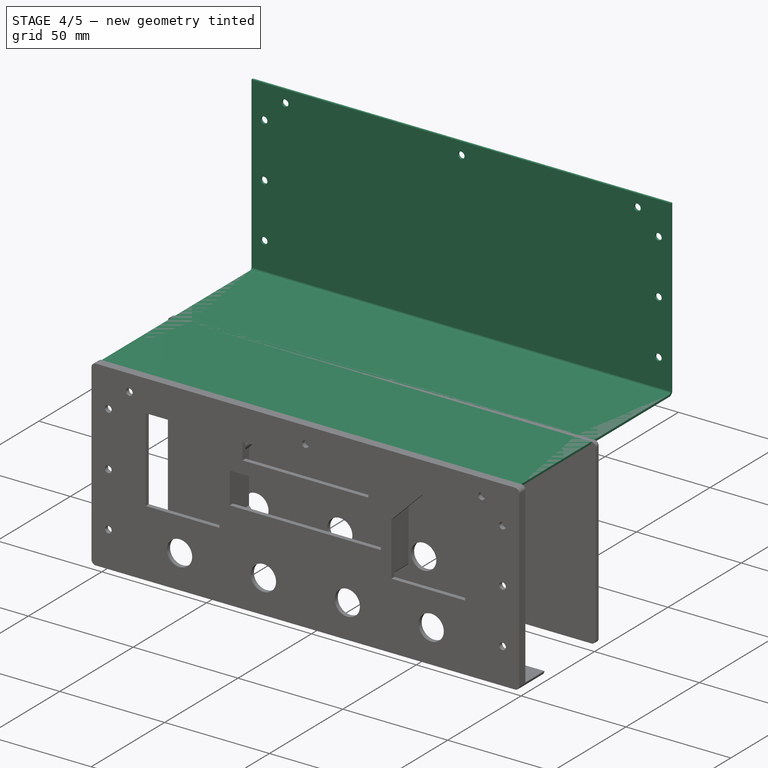
[diagram: stage 4 of 5 — iso view after this stage's code; geometry added in this stage tinted green]
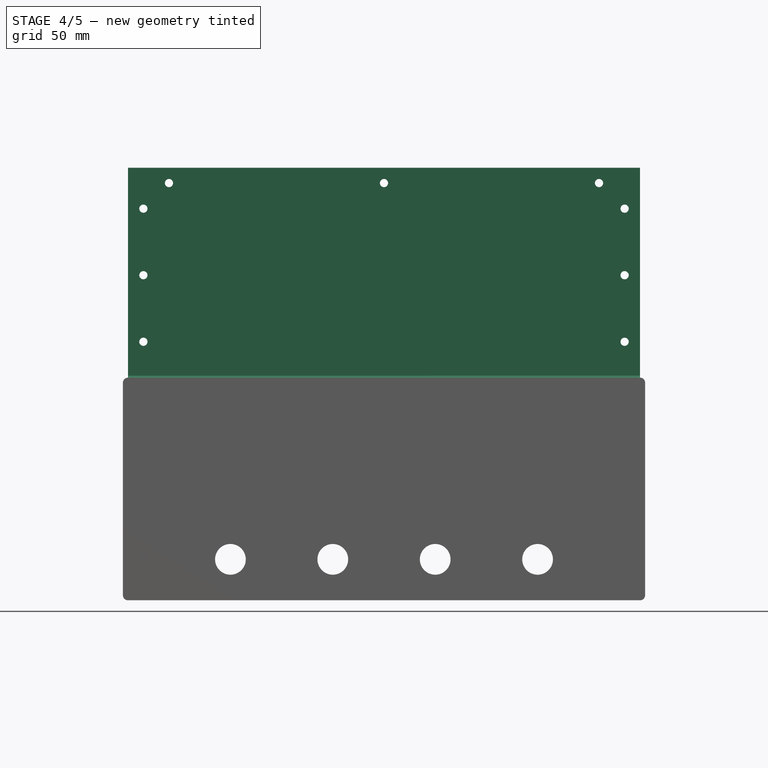
[diagram: stage 4 of 5 — front view after this stage's code; geometry added in this stage tinted green]
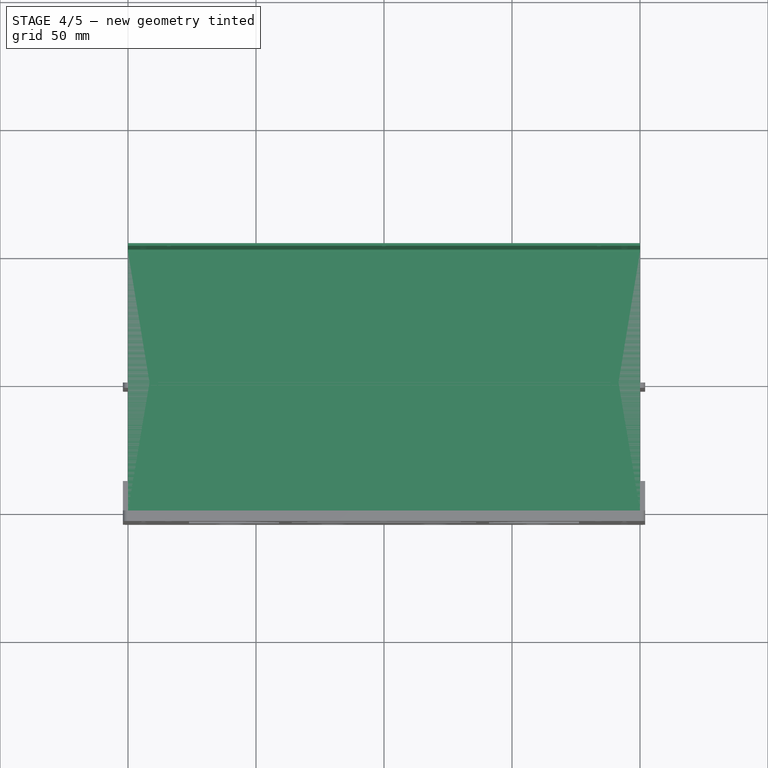
[diagram: stage 4 of 5 — top view after this stage's code; geometry added in this stage tinted green]
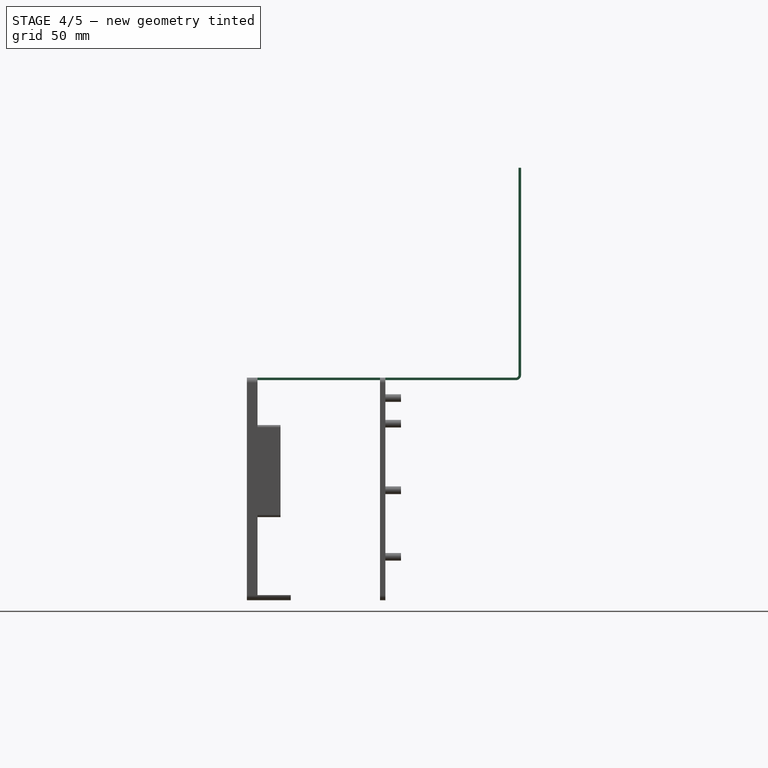
[diagram: stage 4 of 5 — right view after this stage's code; geometry added in this stage tinted green]
FEATURE [Spreadsheet::Sheet] Spreadsheet
  cells = A2='inner length (min 50); B2=100; C2(length)==B2 < 75 ? 75 : B2; A3='inner width (min 120); B3=200; C3(width)==B3 < 120 ? 120 : B3; A4='inner height (min 70); B4=80; C4(height)==B4 < 70 ? 70 : B4; A5='thickness (min 0.6 max 2.0); B5=1; C5(thickness)==B5 < 0.6 ? 0.6 : (B5 > 2 ? 2 : B5); A6='hole (min 1 max 6.0); B6=3.2; C6(hole)==B6 < 1 ? 1 : (B6 > 6 ? 6 : B6); A7='buthole (min 6 max 18); B7=12; C7(buthole)==B7 < 6 ? 6 : (B7 > 18 ? 18 : B7)
FEATURE [Sketcher::SketchObject] Sketch
  FullyConstrained = true
  MapMode = 5
  Support = -> [XY_Plane]
  expr: Constraints[8] = Spreadsheet.width
  expr: Constraints[9] = Spreadsheet.length
  sketch-geometry (4):
    g0: LineSegment StartX=-100 StartY=50 StartZ=0 EndX=100 EndY=50 EndZ=0
    g1: LineSegment StartX=100 StartY=50 StartZ=0 EndX=100 EndY=-50 EndZ=0
    g2: LineSegment StartX=100 StartY=-50 StartZ=0 EndX=-100 EndY=-50 EndZ=0
    g3: LineSegment StartX=-100 StartY=-50 StartZ=0 EndX=-100 EndY=50 EndZ=0
  constraints (10):
    c: Coincident(g0,g1)
    c: Coincident(g1,g2)
    c: Coincident(g2,g3)
    c: Coincident(g3,g0)
    c: Horizontal(g2)
    c: Vertical(g3)
    c: Symmetric(g0,g0,g-2)
    c: Symmetric(g0,g1,g-1)
    c: DistanceX(g0,g0) = 200
    c: DistanceY(g1,g1) = 100
FEATURE [PartDesign::Pad] Pad
  Direction = (0,0,1)
  Length = 1
  Length2 = 10
  Profile = -> Sketch
  ReferenceAxis = -> Sketch [N_Axis]
  Type = 0
  expr: Length = Spreadsheet.thickness
FEATURE [PartDesign::Body] Body  label="MetalTop"
  Group = -> [Sketch,Pad,Bend,Bend001,Bend002,Sketch001,Pocket,Sketch002,Pocket001]
  Origin = -> Origin
  Tip = -> Pocket001
FEATURE [Sketcher::SketchObject] Sketch003
  FullyConstrained = true
  MapMode = 5
  Support = -> [XY_Plane001]
  expr: Constraints[10] = Spreadsheet.length / 2 + Spreadsheet.thickness
  expr: Constraints[7] = Spreadsheet.width
  expr: Constraints[8] = Spreadsheet.length + Spreadsheet.thickness
  sketch-geometry (4):
    g0: LineSegment StartX=-100 StartY=51 StartZ=0 EndX=100 EndY=51 EndZ=0
    g1: LineSegment StartX=100 StartY=51 StartZ=0 EndX=100 EndY=-50 EndZ=0
    g2: LineSegment StartX=100 StartY=-50 StartZ=0 EndX=-100 EndY=-50 EndZ=0
    g3: LineSegment StartX=-100 StartY=-50 StartZ=0 EndX=-100 EndY=51 EndZ=0
  constraints (11):
    c: Coincident(g0,g1)
    c: Coincident(g1,g2)
    c: Coincident(g2,g3)
    c: Coincident(g3,g0)
    c: Horizontal(g2)
    c: Vertical(g3)
    c: Symmetric(g0,g0,g-2)
    c: DistanceX(g0,g0) = 200
    c: DistanceY(g1,g1) = 101
    c: Vertical(g1)
    c: DistanceY(g0) = 51
FEATURE [PartDesign::Pad] Pad001
  Direction = (0,0,1)
  Length = 1
  Length2 = 10
  Profile = -> Sketch003
  ReferenceAxis = -> Sketch003 [N_Axis]
  Type = 0
  expr: Length = Spreadsheet.thickness
FEATURE [PartDesign::FeaturePython] Bend003  # WARN: FeaturePython — macro-defined, semantics opaque (R4)
  AutoMiter = true
  BaseFeature = -> Pad001
  BendType = 0
  LengthList = [81]
  LengthSpec = 0
  ReliefFactor = 0.7
  UseReliefFactor = false
  angle = 90
  baseObject = -> Pad001 [Edge3]
  bendAList = [90]
  extend1 = 0
  extend2 = 0
  gap1 = 0
  gap2 = 0
  invert = false
  kfactor = 0.5
  length = 81
  maxExtendDist = 5
  minGap = 0.1
  minReliefGap = 1
  miterangle1 = 0
  miterangle2 = 0
  offset = 0
  radius = 1
  reliefType = 0
  reliefd = 1
  reliefw = 0.8
  sketchflip = false
  sketchinvert = false
  unfold = false
  expr: length = Spreadsheet.height + Spreadsheet.thickness
  expr: radius = Spreadsheet.thickness
FEATURE [Sketcher::SketchObject] Sketch004
  FullyConstrained = true
  MapMode = 5
  Placement = pos=(0,0,0) rot=(0,0,1;3.14159rad)
  Support = -> [Bend003]
  expr: Constraints[12] = Spreadsheet.width - 20
  expr: Constraints[13] = Spreadsheet.length - 12
  expr: Constraints[8] = Spreadsheet.hole
  expr: Constraints[9] = Spreadsheet.width - 20
  sketch-geometry (6):
    g0: Circle CenterX=-90 CenterY=0 CenterZ=0 NormalX=0 NormalY=0 NormalZ=1 AngleXU=0 Radius=1.6
    g1: Circle CenterX=90 CenterY=0 CenterZ=0 NormalX=0 NormalY=0 NormalZ=1 AngleXU=0 Radius=1.6
    g2: Circle CenterX=-90 CenterY=44 CenterZ=0 NormalX=0 NormalY=0 NormalZ=1 AngleXU=0 Radius=1.6
    g3: Circle CenterX=90 CenterY=44 CenterZ=0 NormalX=0 NormalY=0 NormalZ=1 AngleXU=0 Radius=1.6
    g4: Circle CenterX=-90 CenterY=-44 CenterZ=0 NormalX=0 NormalY=0 NormalZ=1 AngleXU=0 Radius=1.6
    g5: Circle CenterX=90 CenterY=-44 CenterZ=0 NormalX=0 NormalY=0 NormalZ=1 AngleXU=0 Radius=1.6
  constraints (14):
    c: PointOnObject(g0,g-1)
    c: Symmetric(g2,g4,g0)
    c: Symmetric(g3,g5,g1)
    c: Equal(g2,g3)
    c: Equal(g3,g1)
    c: Equal(g1,g5)
    c: Equal(g5,g4)
    c: Equal(g4,g0)
    c: Diameter(g2) = 3.2
    c: DistanceX(g0,g1) = 180
    c: Symmetric(g0,g1,g-1)
    c: Symmetric(g2,g3,g-2)
    c: DistanceX(g4,g5) = 180
    c: DistanceY(g4,g2) = 88
FEATURE [PartDesign::Pocket] Pocket002
  BaseFeature = -> Bend003
  Direction = (0,0,-1)
  Length = 5
  Length2 = 5
  Profile = -> Sketch004
  ReferenceAxis = -> Sketch004 [N_Axis]
  Reversed = true
  Type = 0
FEATURE [Sketcher::SketchObject] Sketch005
  AttachmentOffset = pos=(0,84,0) rot=(0,0,1;0rad)
  FullyConstrained = true
  MapMode = 5
  Placement = pos=(0,53,84) rot=(0,0.707107,0.707107;3.14159rad)
  Support = -> [Pocket002]
  expr: .AttachmentOffset.Base.y = Spreadsheet.height + 4
  expr: Constraints[10] = Spreadsheet.width - 32
  expr: Constraints[11] = Spreadsheet.height - 28
  expr: Constraints[12] = Spreadsheet.width - 12
  expr: Constraints[13] = -17 mm
  expr: Constraints[14] = Spreadsheet.width - 12
  expr: Constraints[17] = -7
  expr: Constraints[21] = Spreadsheet.width - 12
  expr: Constraints[22] = -Spreadsheet.height / 2 - 3
  expr: Constraints[5] = Spreadsheet.hole
  expr: Constraints[9] = -Spreadsheet.thickness - 6
  sketch-geometry (9):
    g0: Circle CenterX=-84 CenterY=-7 CenterZ=0 NormalX=0 NormalY=0 NormalZ=1 AngleXU=0 Radius=1.6
    g1: Circle CenterX=84 CenterY=-7 CenterZ=0 NormalX=0 NormalY=0 NormalZ=1 AngleXU=0 Radius=1.6
    g2: Circle CenterX=94 CenterY=-17 CenterZ=0 NormalX=0 NormalY=0 NormalZ=1 AngleXU=0 Radius=1.6
    g3: Circle CenterX=94 CenterY=-69 CenterZ=0 NormalX=0 NormalY=0 NormalZ=1 AngleXU=0 Radius=1.6
    g4: Circle CenterX=-94 CenterY=-69 CenterZ=0 NormalX=0 NormalY=0 NormalZ=1 AngleXU=0 Radius=1.6
    g5: Circle CenterX=-94 CenterY=-17 CenterZ=0 NormalX=0 NormalY=0 NormalZ=1 AngleXU=0 Radius=1.6
    g6: Circle CenterX=0 CenterY=-7 CenterZ=0 NormalX=0 NormalY=0 NormalZ=1 AngleXU=0 Radius=1.6
    g7: Circle CenterX=-94 CenterY=-43 CenterZ=0 NormalX=0 NormalY=0 NormalZ=1 AngleXU=0 Radius=1.6
    g8: Circle CenterX=94 CenterY=-43 CenterZ=0 NormalX=0 NormalY=0 NormalZ=1 AngleXU=0 Radius=1.6
  constraints (23):
    c: Equal(g0,g1)
    c: Equal(g1,g2)
    c: Equal(g2,g3)
    c: Equal(g3,g4)
    c: Equal(g4,g5)
    c: Diameter(g0) = 3.2
    c: Symmetric(g0,g1,g-2)
    c: Symmetric(g5,g2,g-2)
    c: Symmetric(g4,g3,g-2)
    c: DistanceY(g0) = -7
    c: DistanceX(g0,g1) = 168
    c: DistanceY(g4,g5) = 52
    c: DistanceX(g5,g2) = 188
    c: DistanceY(g5) = -17
    c: DistanceX(g4,g3) = 188
    c: PointOnObject(g6,g-2)
    c: Equal(g5,g6)
    c: DistanceY(g6) = -7
    c: Equal(g6,g8)
    c: Equal(g8,g7)
    c: Symmetric(g7,g8,g-2)
    c: DistanceX(g7,g8) = 188
    c: DistanceY(g7) = -43
FEATURE [PartDesign::Pocket] Pocket003
  BaseFeature = -> Pocket002
  Direction = (0,-1,2e-16)
  Length = 5
  Length2 = 5
  Profile = -> Sketch005
  ReferenceAxis = -> Sketch005 [N_Axis]
  Type = 0
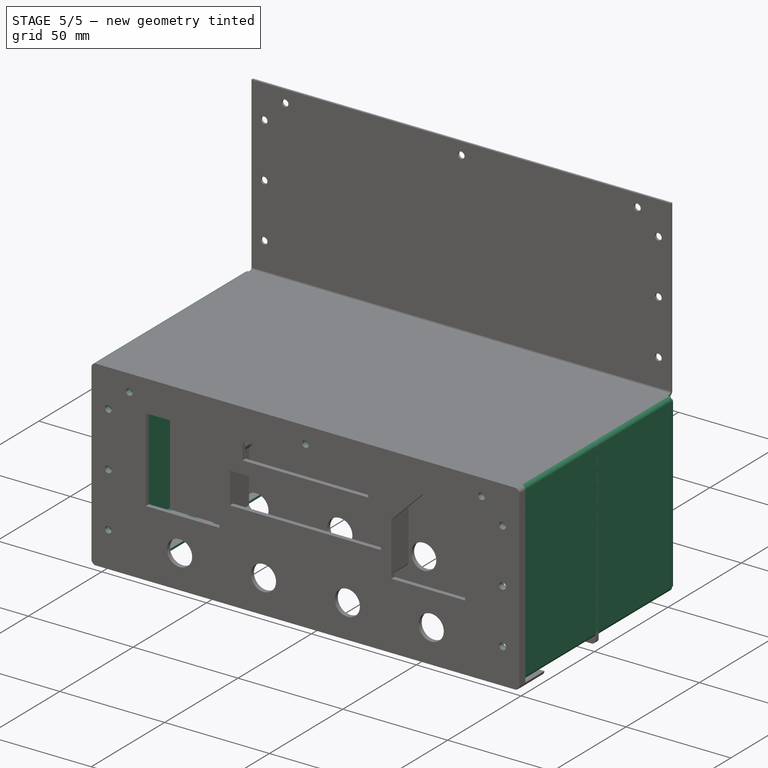
[diagram: stage 5 of 5 — iso view after this stage's code; geometry added in this stage tinted green]
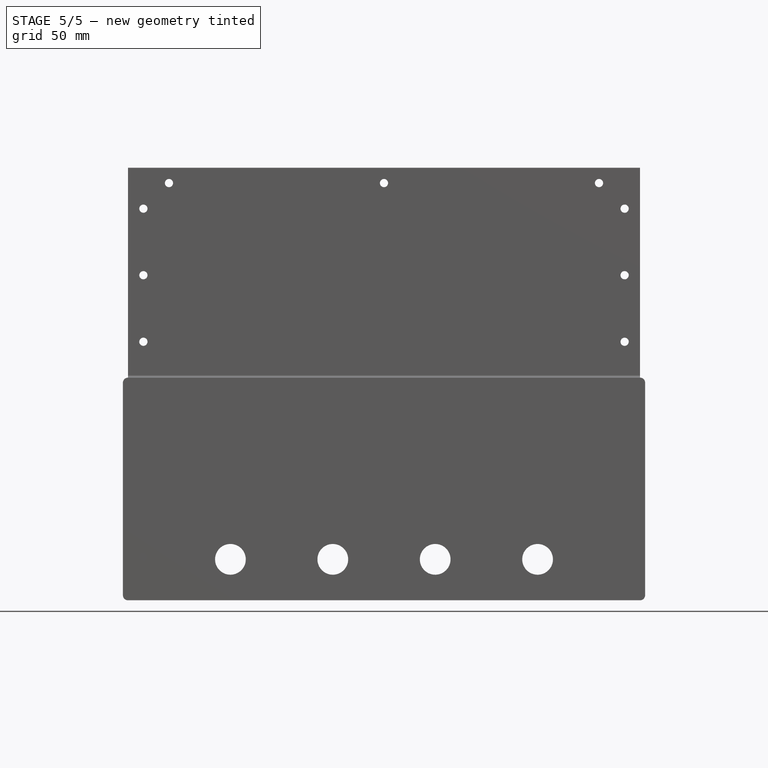
[diagram: stage 5 of 5 — front view after this stage's code; geometry added in this stage tinted green]
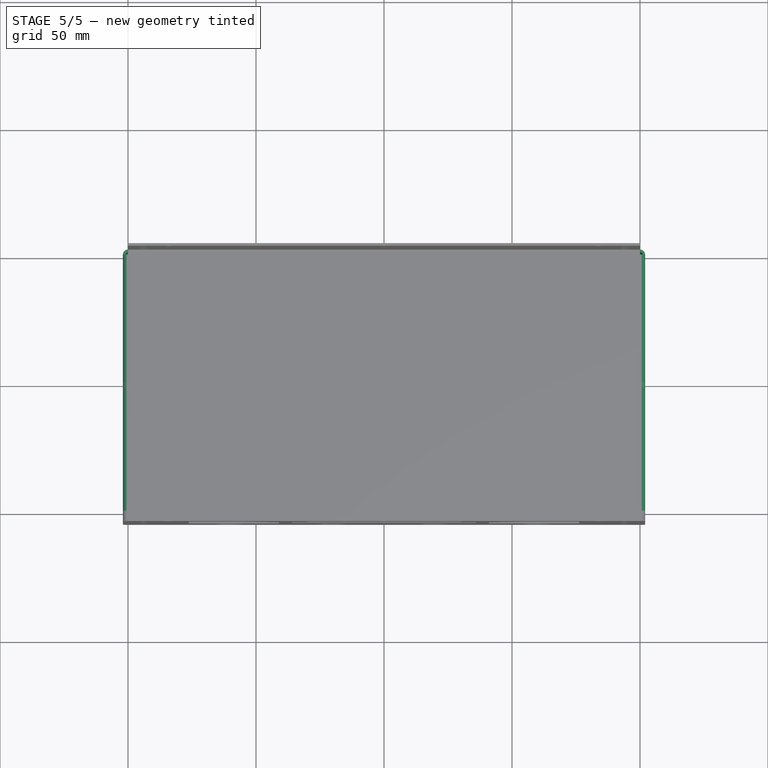
[diagram: stage 5 of 5 — top view after this stage's code; geometry added in this stage tinted green]
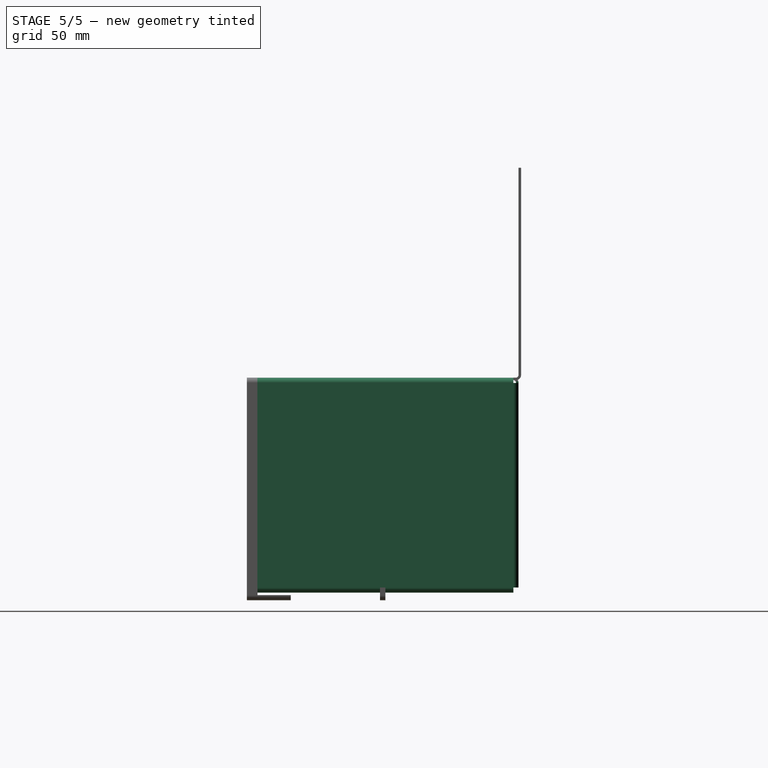
[diagram: stage 5 of 5 — right view after this stage's code; geometry added in this stage tinted green]
FEATURE [PartDesign::FeaturePython] Bend  # WARN: FeaturePython — macro-defined, semantics opaque (R4)
  AutoMiter = true
  BaseFeature = -> Pad
  BendType = 0
  LengthList = [80]
  LengthSpec = 0
  ReliefFactor = 0.7
  UseReliefFactor = false
  angle = 90
  baseObject = -> Pad [Edge12,Edge7]
  bendAList = [90]
  extend1 = 0
  extend2 = 0
  gap1 = 0
  gap2 = 0
  invert = false
  kfactor = 0.5
  length = 80
  maxExtendDist = 5
  minGap = 0.1
  minReliefGap = 1
  miterangle1 = 0
  miterangle2 = 0
  offset = 0
  radius = 1
  reliefType = 0
  reliefd = 1
  reliefw = 0.8
  sketchflip = false
  sketchinvert = false
  unfold = false
  expr: length = Spreadsheet.height
  expr: radius = Spreadsheet.thickness
FEATURE [PartDesign::FeaturePython] Bend001  # WARN: FeaturePython — macro-defined, semantics opaque (R4)
  AutoMiter = true
  BaseFeature = -> Bend
  BendType = 0
  LengthList = [20]
  LengthSpec = 0
  ReliefFactor = 0.7
  UseReliefFactor = false
  angle = 90
  baseObject = -> Bend [Edge41,Edge9]
  bendAList = [90]
  extend1 = 0
  extend2 = 0
  gap1 = 0
  gap2 = 0
  invert = false
  kfactor = 0.5
  length = 20
  maxExtendDist = 5
  minGap = 0.1
  minReliefGap = 1
  miterangle1 = 0
  miterangle2 = 0
  offset = 0
  radius = 1
  reliefType = 0
  reliefd = 1
  reliefw = 0.8
  sketchflip = false
  sketchinvert = false
  unfold = false
  expr: length = 20
  expr: radius = Spreadsheet.thickness
FEATURE [PartDesign::FeaturePython] Bend002  # WARN: FeaturePython — macro-defined, semantics opaque (R4)
  AutoMiter = true
  BaseFeature = -> Bend001
  BendType = 0
  LengthList = [12]
  LengthSpec = 0
  ReliefFactor = 0.7
  UseReliefFactor = false
  angle = 90
  baseObject = -> Bend001 [Edge53,Edge38,Edge20,Edge25,Edge40,Edge56]
  bendAList = [90]
  extend1 = 0
  extend2 = 0
  gap1 = 0
  gap2 = 0
  invert = false
  kfactor = 0.5
  length = 12
  maxExtendDist = 5
  minGap = 0.1
  minReliefGap = 1
  miterangle1 = 0
  miterangle2 = 0
  offset = 0
  radius = 1
  reliefType = 0
  reliefd = 1
  reliefw = 0.8
  sketchflip = false
  sketchinvert = false
  unfold = false
FEATURE [Sketcher::SketchObject] Sketch001
  FullyConstrained = true
  MapMode = 5
  Placement = pos=(0,-52,0) rot=(1,0,0;1.5708rad)
  Support = -> [Bend002]
  expr: Constraints[10] = Spreadsheet.width - 32
  expr: Constraints[11] = Spreadsheet.height - 28
  expr: Constraints[12] = Spreadsheet.width - 12
  expr: Constraints[13] = -17 mm
  expr: Constraints[14] = Spreadsheet.width - 12
  expr: Constraints[17] = -7
  expr: Constraints[21] = Spreadsheet.width - 12
  expr: Constraints[22] = -Spreadsheet.height / 2 - 3
  expr: Constraints[5] = Spreadsheet.hole
  expr: Constraints[9] = -Spreadsheet.thickness - 6
  sketch-geometry (9):
    g0: Circle CenterX=-84 CenterY=-7 CenterZ=0 NormalX=0 NormalY=0 NormalZ=1 AngleXU=0 Radius=1.6
    g1: Circle CenterX=84 CenterY=-7 CenterZ=0 NormalX=0 NormalY=0 NormalZ=1 AngleXU=0 Radius=1.6
    g2: Circle CenterX=94 CenterY=-17 CenterZ=0 NormalX=0 NormalY=0 NormalZ=1 AngleXU=0 Radius=1.6
    g3: Circle CenterX=94 CenterY=-69 CenterZ=0 NormalX=0 NormalY=0 NormalZ=1 AngleXU=0 Radius=1.6
    g4: Circle CenterX=-94 CenterY=-69 CenterZ=0 NormalX=0 NormalY=0 NormalZ=1 AngleXU=0 Radius=1.6
    g5: Circle CenterX=-94 CenterY=-17 CenterZ=0 NormalX=0 NormalY=0 NormalZ=1 AngleXU=0 Radius=1.6
    g6: Circle CenterX=0 CenterY=-7 CenterZ=0 NormalX=0 NormalY=0 NormalZ=1 AngleXU=0 Radius=1.6
    g7: Circle CenterX=-94 CenterY=-43 CenterZ=0 NormalX=0 NormalY=0 NormalZ=1 AngleXU=0 Radius=1.6
    g8: Circle CenterX=94 CenterY=-43 CenterZ=0 NormalX=0 NormalY=0 NormalZ=1 AngleXU=0 Radius=1.6
  constraints (23):
    c: Equal(g0,g1)
    c: Equal(g1,g2)
    c: Equal(g2,g3)
    c: Equal(g3,g4)
    c: Equal(g4,g5)
    c: Diameter(g0) = 3.2
    c: Symmetric(g0,g1,g-2)
    c: Symmetric(g5,g2,g-2)
    c: Symmetric(g4,g3,g-2)
    c: DistanceY(g0) = -7
    c: DistanceX(g0,g1) = 168
    c: DistanceY(g4,g5) = 52
    c: DistanceX(g5,g2) = 188
    c: DistanceY(g5) = -17
    c: DistanceX(g4,g3) = 188
    c: PointOnObject(g6,g-2)
    c: Equal(g5,g6)
    c: DistanceY(g6) = -7
    c: Equal(g6,g8)
    c: Equal(g8,g7)
    c: Symmetric(g7,g8,g-2)
    c: DistanceX(g7,g8) = 188
    c: DistanceY(g7) = -43
FEATURE [PartDesign::Pocket] Pocket
  BaseFeature = -> Bend002
  Direction = (0,1,-2e-16)
  Length = 110
  Length2 = 5
  Profile = -> Sketch001
  ReferenceAxis = -> Sketch001 [N_Axis]
  Type = 0
  expr: Length = Spreadsheet.length + 10
FEATURE [Sketcher::SketchObject] Sketch002
  FullyConstrained = true
  MapMode = 5
  Placement = pos=(0,0,-83) rot=(1,0,0;3.14159rad)
  Support = -> [Pocket]
  expr: Constraints[12] = Spreadsheet.width - 20
  expr: Constraints[13] = Spreadsheet.length - 12
  expr: Constraints[8] = Spreadsheet.hole
  expr: Constraints[9] = Spreadsheet.width - 20
  sketch-geometry (6):
    g0: Circle CenterX=-90 CenterY=-2e-16 CenterZ=0 NormalX=0 NormalY=0 NormalZ=1 AngleXU=0 Radius=1.6
    g1: Circle CenterX=90 CenterY=-1e-16 CenterZ=0 NormalX=0 NormalY=0 NormalZ=1 AngleXU=0 Radius=1.6
    g2: Circle CenterX=-90 CenterY=44 CenterZ=0 NormalX=0 NormalY=0 NormalZ=1 AngleXU=0 Radius=1.6
    g3: Circle CenterX=90 CenterY=44 CenterZ=0 NormalX=0 NormalY=0 NormalZ=1 AngleXU=0 Radius=1.6
    g4: Circle CenterX=-90 CenterY=-44 CenterZ=0 NormalX=0 NormalY=0 NormalZ=1 AngleXU=0 Radius=1.6
    g5: Circle CenterX=90 CenterY=-44 CenterZ=0 NormalX=0 NormalY=0 NormalZ=1 AngleXU=0 Radius=1.6
  constraints (14):
    c: PointOnObject(g0,g-1)
    c: Symmetric(g2,g4,g0)
    c: Symmetric(g3,g5,g1)
    c: Equal(g2,g3)
    c: Equal(g3,g1)
    c: Equal(g1,g5)
    c: Equal(g5,g4)
    c: Equal(g4,g0)
    c: Diameter(g2) = 3.2
    c: DistanceX(g0,g1) = 180
    c: Symmetric(g0,g1,g-1)
    c: Symmetric(g2,g3,g-2)
    c: DistanceX(g4,g5) = 180
    c: DistanceY(g4,g2) = 88
FEATURE [PartDesign::Pocket] Pocket001
  BaseFeature = -> Pocket
  Direction = (-1e-16,0,1)
  Length = 5
  Length2 = 5
  Profile = -> Sketch002
  ReferenceAxis = -> Sketch002 [N_Axis]
  Type = 0
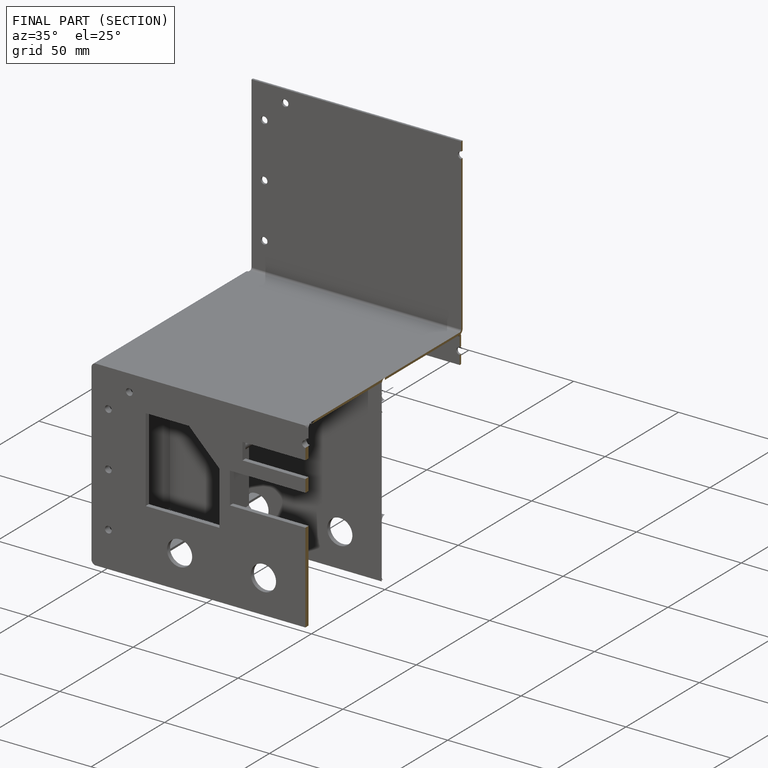
[diagram: finished part — half-section view (interior)]
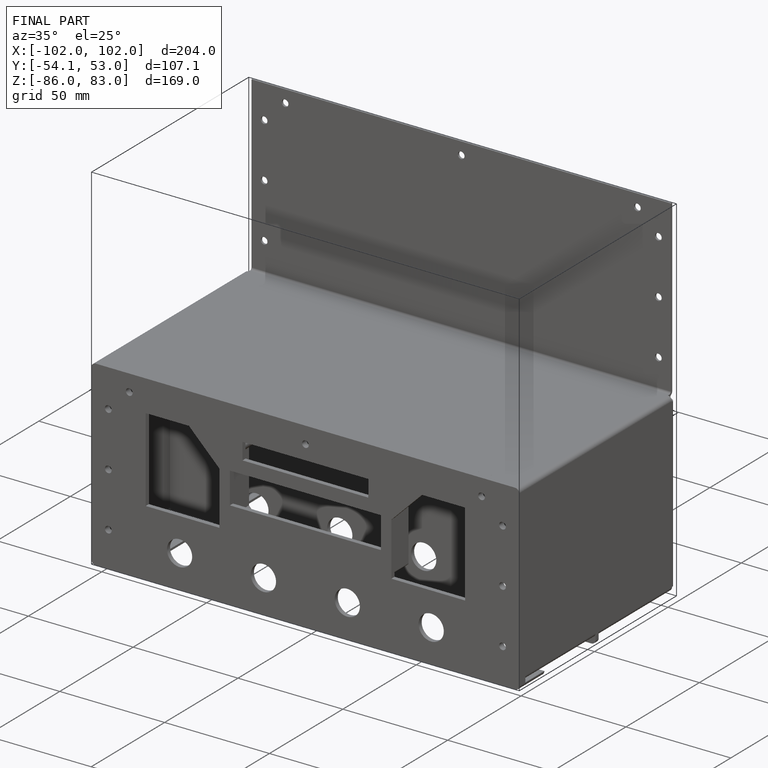
[diagram: finished part — iso view with bounding-box wireframe]
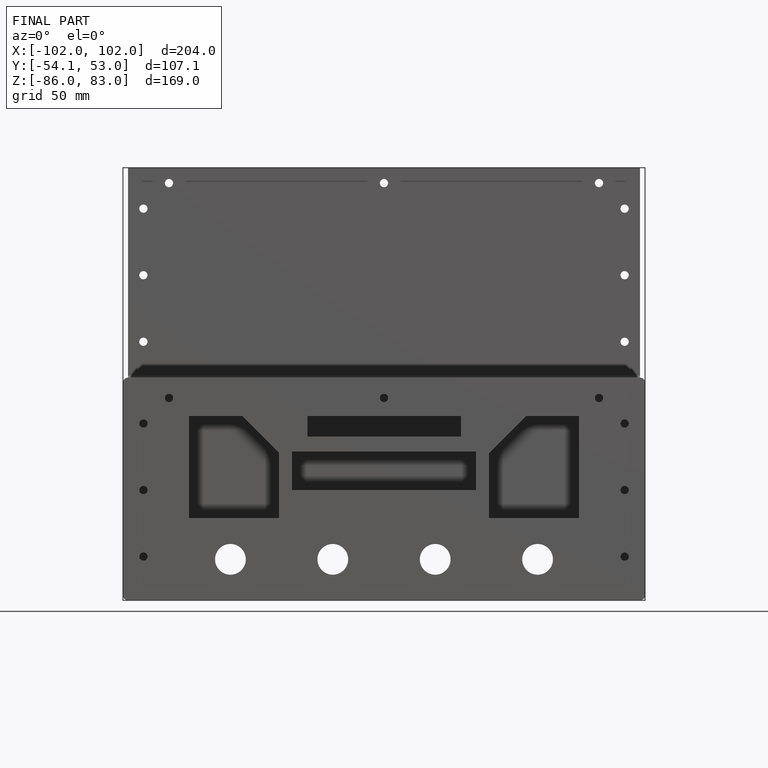
[diagram: finished part — front view with bounding-box wireframe]
